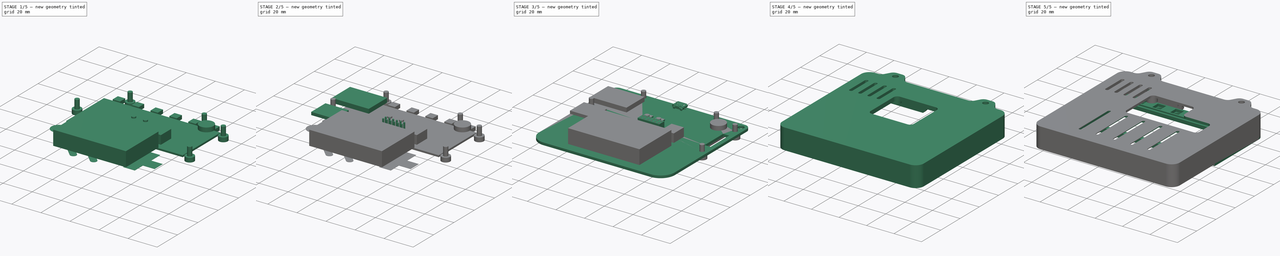
[diagram: build sequence overview — one tinted view per stage of 5, left to right]
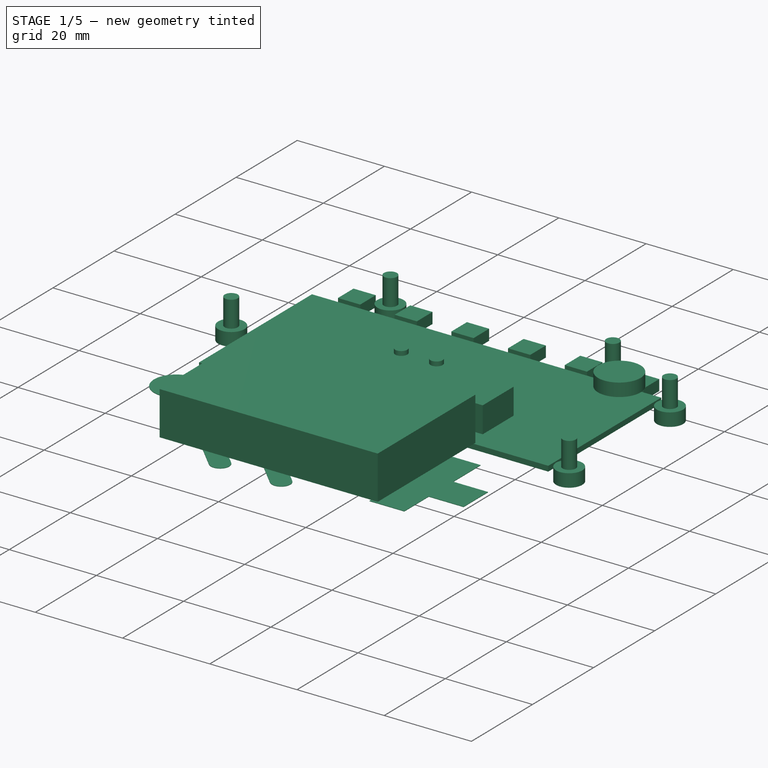
[diagram: stage 1 of 5 — iso view after this stage's code; geometry added in this stage tinted green]
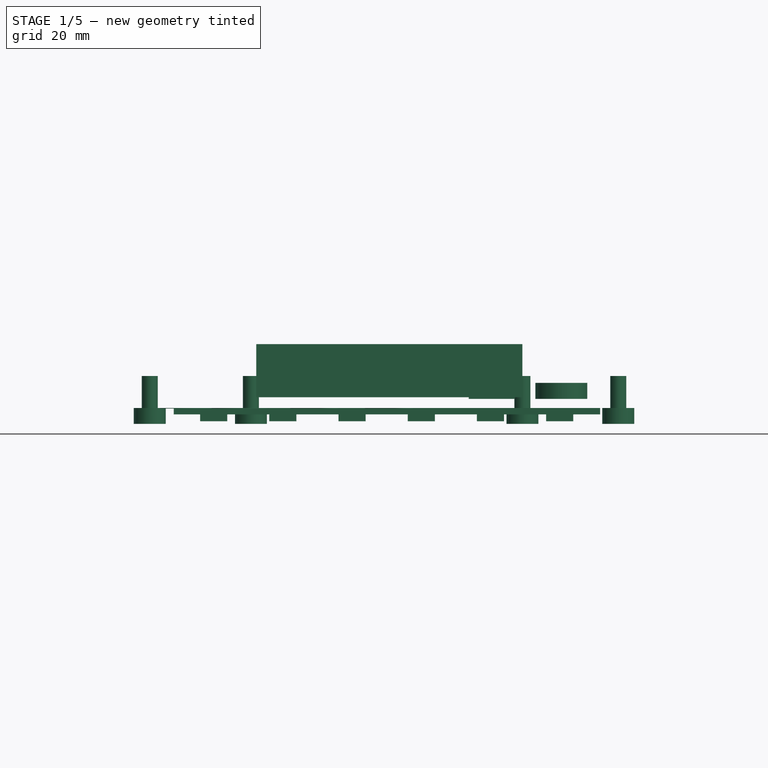
[diagram: stage 1 of 5 — front view after this stage's code; geometry added in this stage tinted green]
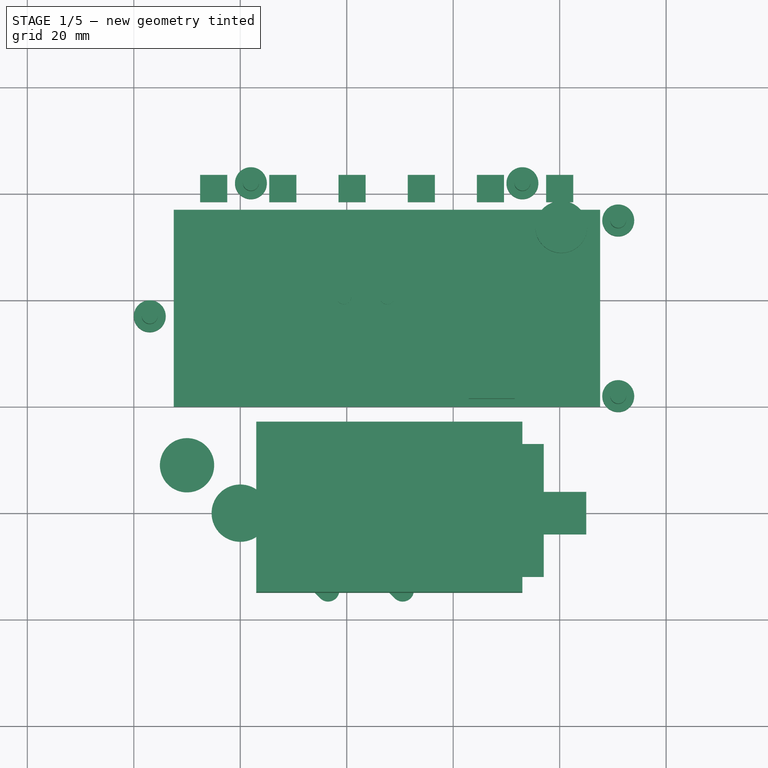
[diagram: stage 1 of 5 — top view after this stage's code; geometry added in this stage tinted green]
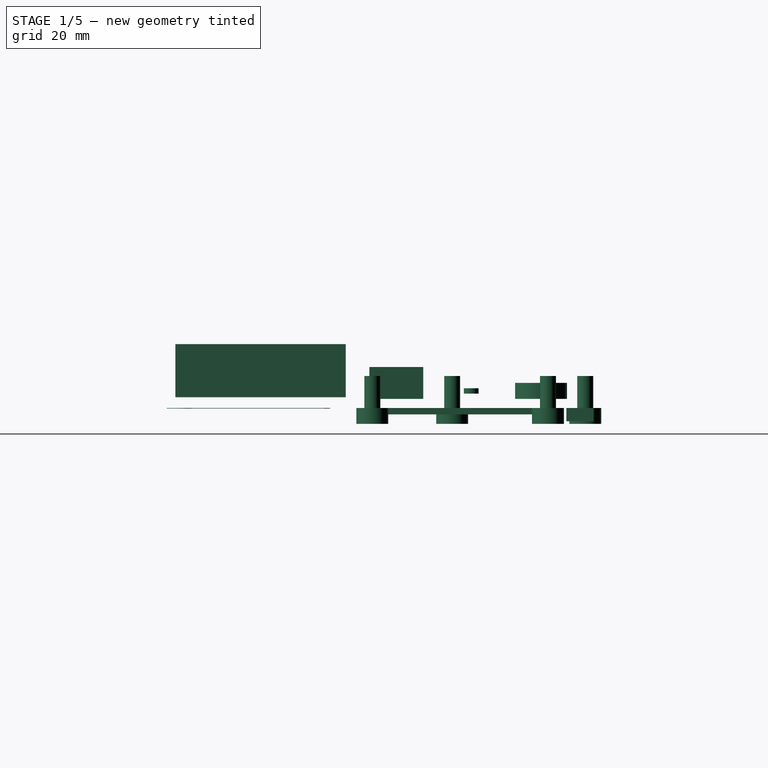
[diagram: stage 1 of 5 — right view after this stage's code; geometry added in this stage tinted green]
FCSTD DOCUMENT  (FreeCAD 0.16R6710 (Git))
Label: basicCase
License: All rights reserved
LicenseURL: http://en.wikipedia.org/wiki/All_rights_reserved
objects: Part::Extrusion×43, Part::Feature×33, Sketcher::SketchObject×26, PartDesign::Pad×7, Part::Cut×6, Part::MultiFuse×5, PartDesign::Pocket×5, Part::FeaturePython×3, PartDesign::Chamfer×3, App::DocumentObjectGroup×3, Part::Compound×2, PartDesign::LinearPattern×2, PartDesign::Fillet×2, Part::Box×1
note: 150 computed .brp shape members not serialized (recipe doc carries the construction recipe); baked Part::Feature solids carry a one-line shape summary decoded from their .brp

FEATURE [Part::Extrusion] Extrude_Polyline1548  label="VibratorOutline_Extrude"
  Base = -> Polyline1548
  Dir = (0,0,3)
  Solid = true
FEATURE [Part::Extrusion] Extrude_Sketch003  label="ledsOutline_Extrude"
  Base = -> Sketch003
  Dir = (0,0,-2.5)
  Solid = true
FEATURE [Part::Extrusion] Extrude_Wire006  label="Start_Extrude"
  Base = -> Wire006
  Dir = (0,0,-0.1)
  Solid = true
FEATURE [Part::Extrusion] Extrude_Wire007  label="Select_Extrude"
  Base = -> Wire007
  Dir = (0,0,-0.1)
  Solid = true
FEATURE [Part::Extrusion] Extrude_Circle019  label="abtn_Extrude"
  Base = -> Circle019
  Dir = (0,0,-0.1)
  Solid = true
FEATURE [Part::Extrusion] Extrude_Circle020  label="bbtn_Extrude"
  Base = -> Circle020
  Dir = (0,0,-0.1)
  Solid = true
FEATURE [Sketcher::SketchObject] Sketch004
  sketch-geometry (13):
    g0: LineSegment StartX=77 StartY=24 StartZ=0 EndX=85 EndY=24 EndZ=0
    g1: LineSegment StartX=85 StartY=24 StartZ=0 EndX=85 EndY=16 EndZ=0
    g2: LineSegment StartX=85 StartY=16 StartZ=0 EndX=77 EndY=16 EndZ=0
    g3: LineSegment StartX=77 StartY=16 StartZ=0 EndX=77 EndY=8 EndZ=0
    g4: LineSegment StartX=77 StartY=8 StartZ=0 EndX=69 EndY=8 EndZ=0
    g5: LineSegment StartX=69 StartY=8 StartZ=0 EndX=69 EndY=16 EndZ=0
    g6: LineSegment StartX=69 StartY=16 StartZ=0 EndX=61 EndY=16 EndZ=0
    g7: LineSegment StartX=61 StartY=16 StartZ=0 EndX=61 EndY=24 EndZ=0
    g8: LineSegment StartX=61 StartY=24 StartZ=0 EndX=69 EndY=24 EndZ=0
    g9: LineSegment StartX=69 StartY=24 StartZ=0 EndX=69 EndY=33 EndZ=0
    g10: LineSegment StartX=69 StartY=33 StartZ=0 EndX=77 EndY=33 EndZ=0
    g11: LineSegment StartX=77 StartY=33 StartZ=0 EndX=77 EndY=24.1 EndZ=0
    g12: LineSegment StartX=77 StartY=24 StartZ=0 EndX=77 EndY=24.1 EndZ=0
  constraints (4):
    c: DistanceX(g0) = 77
    c: DistanceY(g0) = 24
    c: Coincident(g0,g12)
    c: Coincident(g11,g12)
FEATURE [Part::Extrusion] Extrude_Sketch004  label="dpad001"
  Base = -> Sketch004
  Dir = (0,0,-0.1)
  Solid = true
FEATURE [Part::Compound] Compound  label="CapButtons"
  Links = -> [Extrude_Sketch004,Extrude_Wire006,Extrude_Circle019,Extrude_Wire007,Extrude_Circle020,Fusion001001]
FEATURE [Part::Extrusion] Extrude_Wire002  label="batConOutline_Extrude"
  Base = -> Wire002
  Dir = (0,0,6)
  Solid = true
FEATURE [Part::Extrusion] Extrude_Wire005  label="lcd_Extrude"
  Base = -> Wire005
  Dir = (0,0,-1.2)
  Solid = true
FEATURE [Part::Extrusion] Extrude_Sketch  label="Buttons_Extrude"
  Base = -> Sketch
  Dir = (0,0,1)
  Solid = true
FEATURE [Sketcher::SketchObject] Sketch005
  ExternalGeometry = -> [Extrude_Sketch]
  Placement = pos=(0,0,2.7) rot=(0,0,1;0rad)
  Support = -> Extrude_Sketch [Face6]
  sketch-geometry (7):
    g0: Circle CenterX=39.4787 CenterY=60.5688 CenterZ=0 NormalX=0 NormalY=0 NormalZ=1 Radius=1.38631
    g1: Circle CenterX=47.5742 CenterY=60.5688 CenterZ=0 NormalX=0 NormalY=0 NormalZ=1 Radius=1.38631
    g2: LineSegment [constr] StartX=42.0765 StartY=63.1395 StartZ=0 EndX=39.4787 EndY=60.5688 EndZ=0
    g3: LineSegment [constr] StartX=39.4787 StartY=60.5688 StartZ=0 EndX=36.8809 EndY=57.9981 EndZ=0
    g4: LineSegment [constr] StartX=39.4787 StartY=60.5688 StartZ=0 EndX=36.8809 EndY=63.1395 EndZ=0
    g5: LineSegment [constr] StartX=44.9764 StartY=63.1395 StartZ=0 EndX=47.5742 EndY=60.5688 EndZ=0
    g6: LineSegment [constr] StartX=47.5742 StartY=60.5688 StartZ=0 EndX=50.172 EndY=63.1395 EndZ=0
  constraints (15):
    c: Coincident(g2,g-4)
    c: Coincident(g3,g0)
    c: Coincident(g3,g-5)
    c: Coincident(g4,g0)
    c: Coincident(g4,g-4)
    c: Coincident(g5,g-3)
    c: Coincident(g5,g1)
    c: Coincident(g6,g1)
    c: Coincident(g6,g-3)
    c: Equal(g6,g5)
    c: Equal(g5,g2)
    c: Equal(g2,g4)
    c: Equal(g4,g3)
    c: Coincident(g0,g2)
    c: Equal(g0,g1)
FEATURE [Part::Extrusion] Extrude_Sketch005  label="Sketch005_Extrude"
  Base = -> Sketch005
  Dir = (0,0,1)
  Solid = true
FEATURE [Part::Box] Box  label="Battery"
  Height = 10
  Length = 50
  Placement = pos=(23,5,2) rot=(0,0,1;0rad)
  Width = 32
FEATURE [Sketcher::SketchObject] Sketch010
  Placement = pos=(0,0,0) rot=(1,0,0;3.14159rad)
  sketch-geometry (5):
    g0: Circle CenterX=3 CenterY=-57 CenterZ=0 NormalX=0 NormalY=0 NormalZ=1 Radius=3
    g1: Circle CenterX=91 CenterY=-42 CenterZ=0 NormalX=0 NormalY=0 NormalZ=1 Radius=3
    g2: Circle CenterX=91 CenterY=-75 CenterZ=0 NormalX=0 NormalY=0 NormalZ=1 Radius=3
    g3: Circle CenterX=73 CenterY=-82 CenterZ=0 NormalX=0 NormalY=0 NormalZ=1 Radius=3
    g4: Circle CenterX=22 CenterY=-82 CenterZ=0 NormalX=0 NormalY=0 NormalZ=1 Radius=3
  constraints (2):
    c: Radius(g4) = 3
    c: Equal(g4, g0-g3) x4
FEATURE [Part::Extrusion] Extrude_Sketch010  label="Sketch010_Extrude"
  Base = -> Sketch010
  Dir = (0,0,-3)
  Solid = true
FEATURE [Sketcher::SketchObject] Sketch011
  ExternalGeometry = -> [Extrude_Sketch010]
  Support = -> Extrude_Sketch010 [Face2]
  sketch-geometry (5):
    g0: Circle CenterX=3 CenterY=57 CenterZ=0 NormalX=0 NormalY=0 NormalZ=1 Radius=1.5
    g1: Circle CenterX=22 CenterY=82 CenterZ=0 NormalX=0 NormalY=0 NormalZ=1 Radius=1.5
    g2: Circle CenterX=73 CenterY=82 CenterZ=0 NormalX=0 NormalY=0 NormalZ=1 Radius=1.5
    g3: Circle CenterX=91 CenterY=75 CenterZ=0 NormalX=0 NormalY=0 NormalZ=1 Radius=1.5
    g4: Circle CenterX=91 CenterY=42 CenterZ=0 NormalX=0 NormalY=0 NormalZ=1 Radius=1.5
  constraints (7):
    c: Coincident(g0,g-4)
    c: Coincident(g1,g-3)
    c: Coincident(g2,g-5)
    c: Coincident(g3,g-6)
    c: Coincident(g4,g-7)
    c: Radius(g0) = 1.5
    c: Equal(g0, g1-g4) x4
FEATURE [Part::Extrusion] Extrude_Sketch011  label="Sketch011_Extrude"
  Base = -> Sketch011
  Dir = (0,0,6)
  Solid = true
FEATURE [Part::MultiFuse] Fusion001003  label="M3-6mmScrews"
  Shapes = -> [Extrude_Sketch010,Extrude_Sketch011]
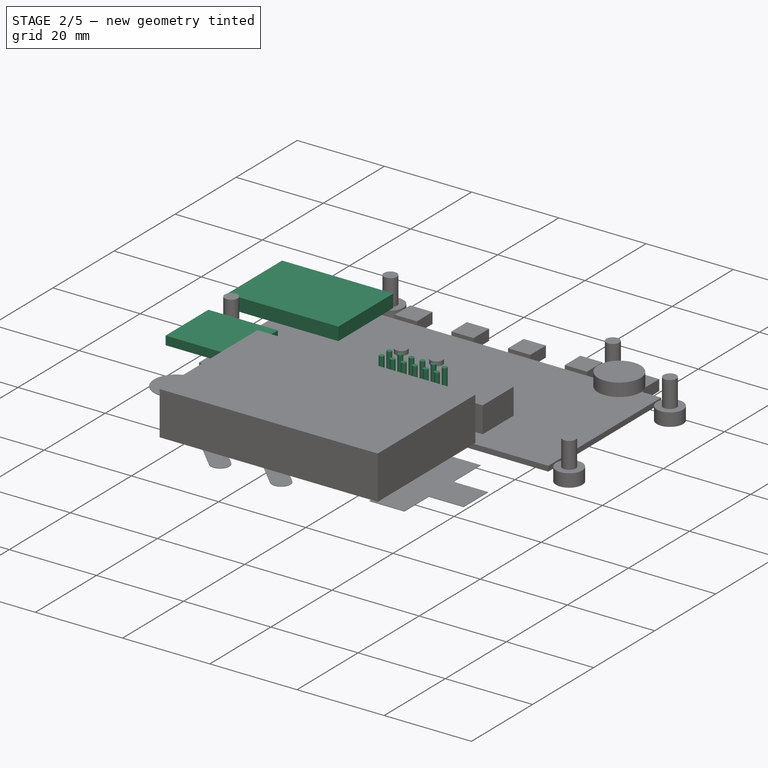
[diagram: stage 2 of 5 — iso view after this stage's code; geometry added in this stage tinted green]
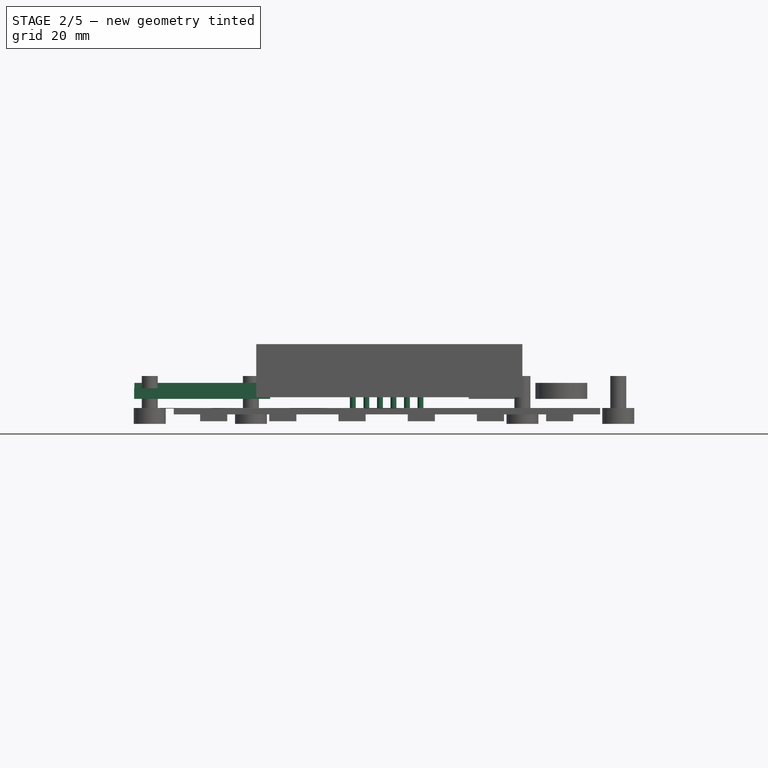
[diagram: stage 2 of 5 — front view after this stage's code; geometry added in this stage tinted green]
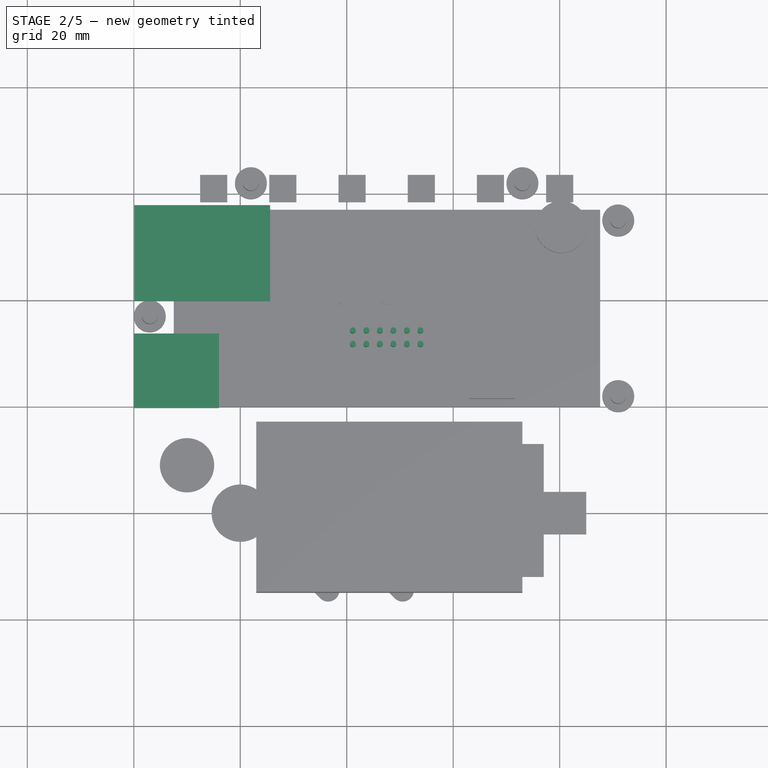
[diagram: stage 2 of 5 — top view after this stage's code; geometry added in this stage tinted green]
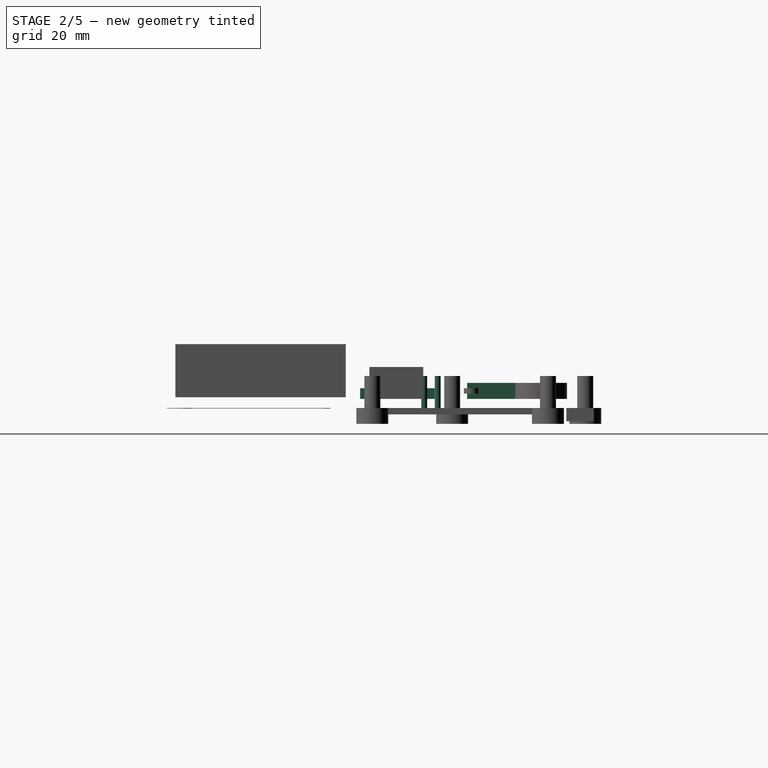
[diagram: stage 2 of 5 — right view after this stage's code; geometry added in this stage tinted green]
FEATURE [Part::Extrusion] Extrude_Circle007  label="Circle007_Extrude"
  Base = -> Circle007
  Dir = (0,0,6)
  Solid = true
FEATURE [Part::Extrusion] Extrude_Circle008  label="Circle008_Extrude"
  Base = -> Circle008
  Dir = (0,0,6)
  Solid = true
FEATURE [Part::Extrusion] Extrude_Circle009  label="Circle009_Extrude"
  Base = -> Circle009
  Dir = (0,0,6)
  Solid = true
FEATURE [Part::Extrusion] Extrude_Circle010  label="Circle010_Extrude"
  Base = -> Circle010
  Dir = (0,0,6)
  Solid = true
FEATURE [Part::Extrusion] Extrude_Circle011  label="Circle011_Extrude"
  Base = -> Circle011
  Dir = (0,0,6)
  Solid = true
FEATURE [Part::Extrusion] Extrude_Circle012  label="Circle012_Extrude"
  Base = -> Circle012
  Dir = (0,0,6)
  Solid = true
FEATURE [Part::Extrusion] Extrude_Circle013  label="Circle013_Extrude"
  Base = -> Circle013
  Dir = (0,0,6)
  Solid = true
FEATURE [Part::Extrusion] Extrude_Circle014  label="Circle014_Extrude"
  Base = -> Circle014
  Dir = (0,0,6)
  Solid = true
FEATURE [Part::Extrusion] Extrude_Circle015  label="Circle015_Extrude"
  Base = -> Circle015
  Dir = (0,0,6)
  Solid = true
FEATURE [Part::Extrusion] Extrude_Circle016  label="Circle016_Extrude"
  Base = -> Circle016
  Dir = (0,0,6)
  Solid = true
FEATURE [Part::Extrusion] Extrude_Circle017  label="Circle017_Extrude"
  Base = -> Circle017
  Dir = (0,0,6)
  Solid = true
FEATURE [Part::Extrusion] Extrude_Circle018  label="Circle018_Extrude"
  Base = -> Circle018
  Dir = (0,0,6)
  Solid = true
FEATURE [Part::MultiFuse] Fusion001  label="AuxConn"
  Shapes = -> [Extrude_Circle007,Extrude_Circle015,Extrude_Circle010,Extrude_Circle012,Extrude_Circle013,Extrude_Circle017,Extrude_Circle018,Extrude_Circle008,Extrude_Circle011,Extrude_Circle009,Extrude_Circle016,Extrude_Circle014]
FEATURE [Part::Extrusion] Extrude_Sketch002  label="sdouline_Extrude"
  Base = -> Sketch002
  Dir = (0,0,2)
  Solid = true
FEATURE [Part::Extrusion] Extrude_Wire003  label="ESP32Outline_Extrude"
  Base = -> Wire003
  Dir = (0,0,3)
  Solid = true
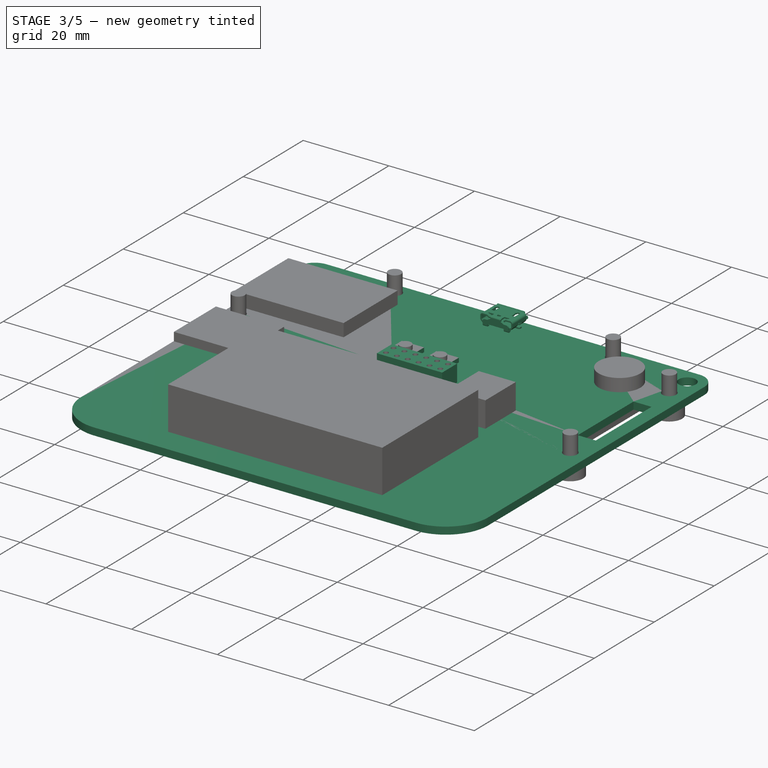
[diagram: stage 3 of 5 — iso view after this stage's code; geometry added in this stage tinted green]
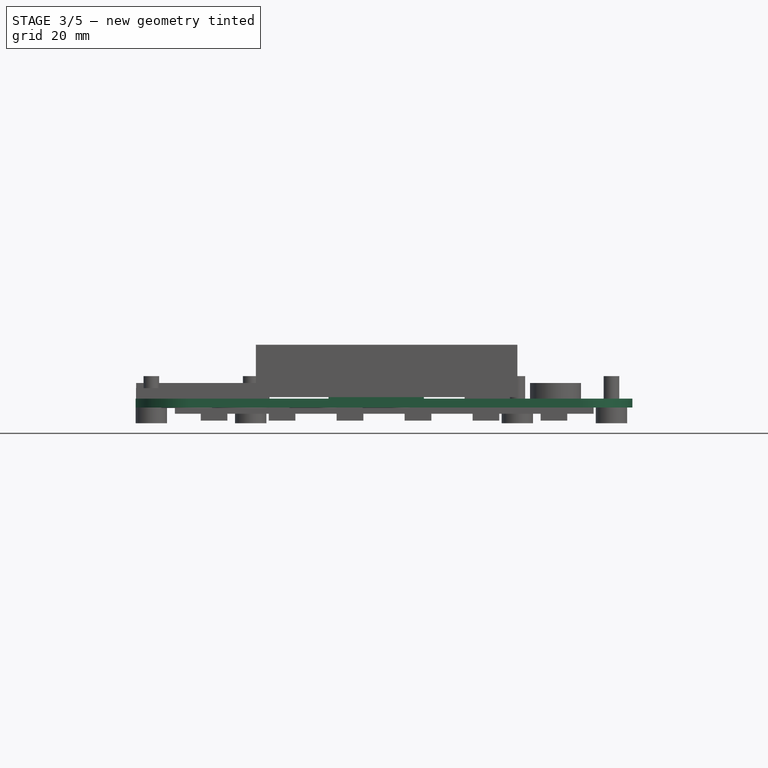
[diagram: stage 3 of 5 — front view after this stage's code; geometry added in this stage tinted green]
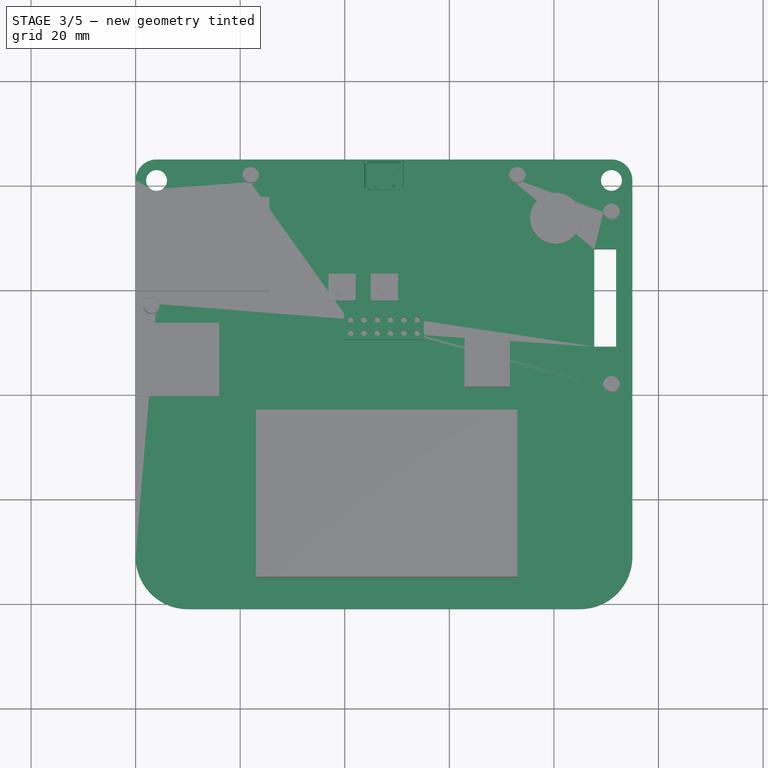
[diagram: stage 3 of 5 — top view after this stage's code; geometry added in this stage tinted green]
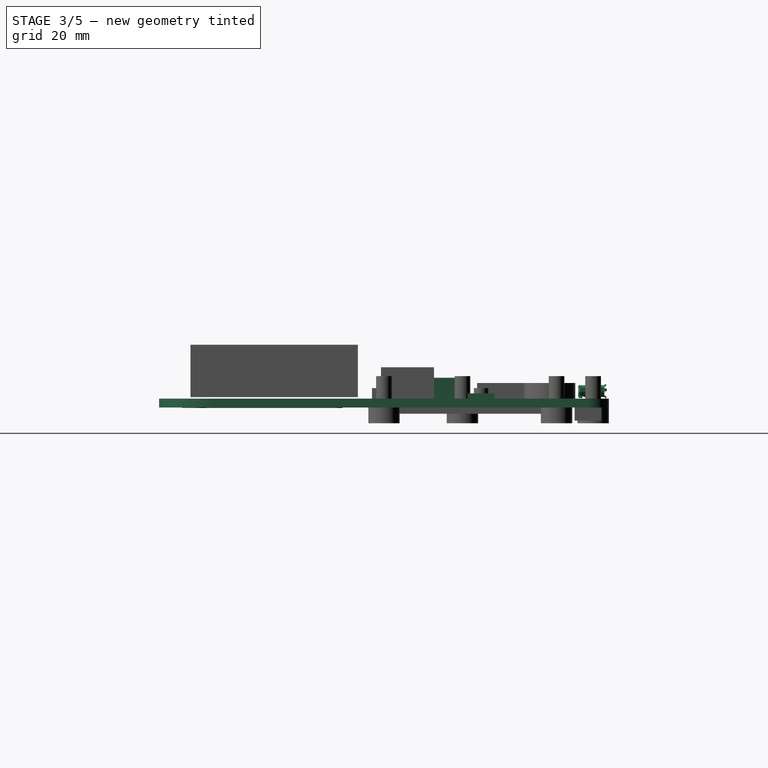
[diagram: stage 3 of 5 — right view after this stage's code; geometry added in this stage tinted green]
FEATURE [Part::Feature] Circle
  shape: bbox 4 x 4 x 2e-07 mm, 0 faces, 0 solids (baked)
FEATURE [Part::Feature] Circle001
  shape: bbox 4 x 4 x 2e-07 mm, 0 faces, 0 solids (baked)
FEATURE [Part::Feature] Circle002 .. Circle006  x5 (patterned run collapsed; names and placements below)
  shape: bbox 3.2 x 3.2 x 2e-07 mm, 0 faces, 0 solids (baked)
FEATURE [Part::Feature] Circle007 .. Circle018  x12 (patterned run collapsed; names and placements below)
  shape: bbox 1.1 x 1.1 x 2e-07 mm, 0 faces, 0 solids (baked)
FEATURE [Part::Feature] Face
  shape: bbox 95 x 86 x 2e-07 mm, 1 faces, 0 solids (baked)
FEATURE [Part::Extrusion] Extrude_Face  label="pcbOutline"
  Base = -> Face
  Dir = (0,0,1.7)
  Solid = true
FEATURE [Part::Extrusion] Extrude_Circle  label="Circle_Extrude"
  Base = -> Circle
  Dir = (0,0,1.7)
  Solid = true
FEATURE [Part::Extrusion] Extrude_Circle001  label="Circle001_Extrude"
  Base = -> Circle001
  Dir = (0,0,1.7)
  Solid = true
FEATURE [Part::Extrusion] Extrude_Circle002  label="Circle002_Extrude"
  Base = -> Circle002
  Dir = (0,0,1.7)
  Solid = true
FEATURE [Part::Extrusion] Extrude_Circle003  label="Circle003_Extrude"
  Base = -> Circle003
  Dir = (0,0,1.7)
  Solid = true
FEATURE [Part::Extrusion] Extrude_Circle004  label="Circle004_Extrude"
  Base = -> Circle004
  Dir = (0,0,1.7)
  Solid = true
FEATURE [Part::Extrusion] Extrude_Circle005  label="Circle005_Extrude"
  Base = -> Circle005
  Dir = (0,0,1.7)
  Solid = true
FEATURE [Part::Extrusion] Extrude_Circle006  label="Circle006_Extrude"
  Base = -> Circle006
  Dir = (0,0,1.7)
  Solid = true
FEATURE [Part::MultiFuse] Fusion  label="Holes"
  Shapes = -> [Extrude_Circle,Extrude_Circle002,Extrude_Circle001,Extrude_Circle005,Extrude_Circle003,Extrude_Circle004,Extrude_Circle006]
FEATURE [Part::Feature] Wire
  shape: bbox 4.2 x 18.6 x 2e-07 mm, 0 faces, 0 solids (baked)
FEATURE [Part::Extrusion] Extrude_Wire  label="lcdWires"
  Base = -> Wire
  Dir = (0,0,1.7)
  Solid = true
FEATURE [Part::Feature] Wire001  label="BatteryArea"
  Placement = pos=(0,0,1.7) rot=(0,0,1;0rad)
  shape: bbox 58.5 x 39.7 x 2e-07 mm, 0 faces, 0 solids (baked)
FEATURE [Part::Feature] Wire002  label="batConOutline"
  Placement = pos=(0,0,1.7) rot=(0,0,1;0rad)
  shape: bbox 8.636 x 10.13 x 2e-07 mm, 0 faces, 0 solids (baked)
FEATURE [Part::Feature] Wire003  label="ESP32Outline"
  Placement = pos=(0,0,1.7) rot=(0,0,1;0rad)
  shape: bbox 25.5 x 18 x 2e-07 mm, 0 faces, 0 solids (baked)
FEATURE [Part::Feature] Polyline1548  label="VibratorOutline"
  Placement = pos=(0,0,1.7) rot=(0,0,1;0rad)
  shape: bbox 9.751 x 9.751 x 2e-07 mm, 0 faces, 0 solids (baked)
FEATURE [Sketcher::SketchObject] Sketch  label="Buttons"
  Placement = pos=(0,0,1.7) rot=(0,0,1;0rad)
  sketch-geometry (9):
    g0: LineSegment StartX=42.0765 StartY=63.1395 StartZ=0 EndX=36.8809 EndY=63.1395 EndZ=0
    g1: LineSegment StartX=36.8809 StartY=63.1395 StartZ=0 EndX=36.8809 EndY=57.9981 EndZ=0
    g2: LineSegment StartX=36.8809 StartY=57.9981 StartZ=0 EndX=42.0765 EndY=57.9981 EndZ=0
    g3: LineSegment StartX=42.0765 StartY=57.9981 StartZ=0 EndX=42.0765 EndY=63.1395 EndZ=0
    g4: LineSegment StartX=44.9764 StartY=63.1395 StartZ=0 EndX=50.172 EndY=63.1395 EndZ=0
    g5: LineSegment StartX=50.172 StartY=63.1395 StartZ=0 EndX=50.172 EndY=57.9981 EndZ=0
    g6: LineSegment StartX=50.172 StartY=57.9981 StartZ=0 EndX=44.9764 EndY=57.9981 EndZ=0
    g7: LineSegment StartX=44.9764 StartY=57.9981 StartZ=0 EndX=44.9764 EndY=63.1395 EndZ=0
    g8: LineSegment [constr] StartX=42.0765 StartY=63.1395 StartZ=0 EndX=44.9764 EndY=63.1395 EndZ=0
  constraints (21):
    c: Coincident(g0,g1)
    c: Coincident(g1,g2)
    c: Coincident(g2,g3)
    c: Coincident(g3,g0)
    c: Horizontal(g0)
    c: Horizontal(g2)
    c: Vertical(g1)
    c: Vertical(g3)
    c: Coincident(g4,g5)
    c: Coincident(g5,g6)
    c: Coincident(g6,g7)
    c: Coincident(g7,g4)
    c: Horizontal(g4)
    c: Horizontal(g6)
    c: Vertical(g5)
    c: Vertical(g7)
    c: Equal(g0,g4)
    c: Equal(g3,g7)
    c: Coincident(g4,g8)
    c: Coincident(g0,g8)
    c: Horizontal(g8)
FEATURE [Sketcher::SketchObject] Sketch001  label="auxConnAoutline"
  Placement = pos=(0,0,1.7) rot=(1,0,0;3.14159rad)
  sketch-geometry (7):
    g0: LineSegment StartX=55.125 StartY=-50.5 StartZ=0 EndX=39.875 EndY=-50.5 EndZ=0
    g1: LineSegment StartX=39.875 StartY=-50.5 StartZ=0 EndX=39.875 EndY=-55.5 EndZ=0
    g2: LineSegment StartX=39.875 StartY=-55.5 StartZ=0 EndX=55.125 EndY=-55.5 EndZ=0
    g3: LineSegment StartX=55.125 StartY=-55.5 StartZ=0 EndX=55.125 EndY=-50.5 EndZ=0
    g4: LineSegment [constr] StartX=41.15 StartY=-51.73 StartZ=0 EndX=39.875 EndY=-50.5 EndZ=0
    g5: LineSegment [constr] StartX=41.15 StartY=-54.27 StartZ=0 EndX=39.875 EndY=-55.5 EndZ=0
    g6: LineSegment [constr] StartX=53.85 StartY=-51.73 StartZ=0 EndX=55.125 EndY=-50.5 EndZ=0
  constraints (15):
    c: Coincident(g0,g1)
    c: Coincident(g1,g2)
    c: Coincident(g2,g3)
    c: Coincident(g3,g0)
    c: Horizontal(g0)
    c: Horizontal(g2)
    c: Vertical(g1)
    c: Vertical(g3)
    c: Coincident(g4,g0)
    c: Coincident(g5,g1)
    c: Coincident(g6,g0)
    c: Equal(g6,g4)
    c: Equal(g4,g5)
    c: Distance(g0) = 15.25
    c: Distance(g3) = 5
FEATURE [Sketcher::SketchObject] Sketch002  label="sdouline"
  Placement = pos=(0,0,1.7) rot=(0,0,1;0rad)
  sketch-geometry (4):
    g0: LineSegment StartX=16.0011 StartY=53.7008 StartZ=0 EndX=0.063418 EndY=53.7008 EndZ=0
    g1: LineSegment StartX=0.063418 StartY=53.7008 StartZ=0 EndX=0.063418 EndY=39.6988 EndZ=0
    g2: LineSegment StartX=0.063418 StartY=39.6988 StartZ=0 EndX=16.0011 EndY=39.6988 EndZ=0
    g3: LineSegment StartX=16.0011 StartY=39.6988 StartZ=0 EndX=16.0011 EndY=53.7008 EndZ=0
  constraints (8):
    c: Coincident(g0,g1)
    c: Coincident(g1,g2)
    c: Coincident(g2,g3)
    c: Coincident(g3,g0)
    c: Horizontal(g0)
    c: Horizontal(g2)
    c: Vertical(g1)
    c: Vertical(g3)
FEATURE [Part::Feature] Wire005  label="lcd"
  shape: bbox 80.1 x 37 x 2e-07 mm, 0 faces, 0 solids (baked)
FEATURE [Part::Feature] Wire006  label="Start"
  shape: bbox 9.243 x 9.243 x 2e-07 mm, 0 faces, 0 solids (baked)
FEATURE [Part::Feature] Wire007  label="Select"
  shape: bbox 9.243 x 9.243 x 2e-07 mm, 0 faces, 0 solids (baked)
FEATURE [Part::Feature] Circle019  label="abtn"
  shape: bbox 10.2 x 10.2 x 2e-07 mm, 0 faces, 0 solids (baked)
FEATURE [Part::Feature] Circle020  label="bbtn"
  shape: bbox 10.77 x 10.77 x 2e-07 mm, 0 faces, 0 solids (baked)
FEATURE [Sketcher::SketchObject] Sketch003  label="ledsOutline"
  sketch-geometry (29):
    g0: LineSegment StartX=12.45 StartY=83.55 StartZ=0 EndX=17.55 EndY=83.55 EndZ=0
    g1: LineSegment StartX=17.55 StartY=83.55 StartZ=0 EndX=17.55 EndY=78.45 EndZ=0
    g2: LineSegment StartX=17.55 StartY=78.45 StartZ=0 EndX=12.45 EndY=78.45 EndZ=0
    g3: LineSegment StartX=12.45 StartY=78.45 StartZ=0 EndX=12.45 EndY=83.55 EndZ=0
    g4: LineSegment StartX=25.45 StartY=83.55 StartZ=0 EndX=30.55 EndY=83.55 EndZ=0
    g5: LineSegment StartX=30.55 StartY=83.55 StartZ=0 EndX=30.55 EndY=78.45 EndZ=0
    g6: LineSegment StartX=30.55 StartY=78.45 StartZ=0 EndX=25.45 EndY=78.45 EndZ=0
    g7: LineSegment StartX=25.45 StartY=78.45 StartZ=0 EndX=25.45 EndY=83.55 EndZ=0
    g8: LineSegment StartX=38.45 StartY=83.55 StartZ=0 EndX=43.55 EndY=83.55 EndZ=0
    g9: LineSegment StartX=43.55 StartY=83.55 StartZ=0 EndX=43.55 EndY=78.45 EndZ=0
    g10: LineSegment StartX=43.55 StartY=78.45 StartZ=0 EndX=38.45 EndY=78.45 EndZ=0
    g11: LineSegment StartX=38.45 StartY=78.45 StartZ=0 EndX=38.45 EndY=83.55 EndZ=0
    g12: LineSegment StartX=51.45 StartY=83.55 StartZ=0 EndX=56.55 EndY=83.55 EndZ=0
    g13: LineSegment StartX=56.55 StartY=83.55 StartZ=0 EndX=56.55 EndY=78.45 EndZ=0
    g14: LineSegment StartX=56.55 StartY=78.45 StartZ=0 EndX=51.45 EndY=78.45 EndZ=0
    g15: LineSegment StartX=51.45 StartY=78.45 StartZ=0 EndX=51.45 EndY=83.55 EndZ=0
    g16: LineSegment StartX=64.45 StartY=83.55 StartZ=0 EndX=69.55 EndY=83.55 EndZ=0
    g17: LineSegment StartX=69.55 StartY=83.55 StartZ=0 EndX=69.55 EndY=78.45 EndZ=0
    g18: LineSegment StartX=69.55 StartY=78.45 StartZ=0 EndX=64.45 EndY=78.45 EndZ=0
    g19: LineSegment StartX=64.45 StartY=78.45 StartZ=0 EndX=64.45 EndY=83.55 EndZ=0
    g20: LineSegment StartX=77.45 StartY=83.55 StartZ=0 EndX=82.55 EndY=83.55 EndZ=0
    g21: LineSegment StartX=82.55 StartY=83.55 StartZ=0 EndX=82.55 EndY=78.45 EndZ=0
    g22: LineSegment StartX=82.55 StartY=78.45 StartZ=0 EndX=77.45 EndY=78.45 EndZ=0
    g23: LineSegment StartX=77.45 StartY=78.45 StartZ=0 EndX=77.45 EndY=83.55 EndZ=0
    g24: LineSegment [constr] StartX=77.45 StartY=83.55 StartZ=0 EndX=69.55 EndY=83.55 EndZ=0
    g25: LineSegment [constr] StartX=64.45 StartY=83.55 StartZ=0 EndX=56.55 EndY=83.55 EndZ=0
    g26: LineSegment [constr] StartX=51.45 StartY=83.55 StartZ=0 EndX=43.55 EndY=83.55 EndZ=0
    g27: LineSegment [constr] StartX=38.45 StartY=83.55 StartZ=0 EndX=30.55 EndY=83.55 EndZ=0
    g28: LineSegment [constr] StartX=25.45 StartY=83.55 StartZ=0 EndX=17.55 EndY=83.55 EndZ=0
  constraints (82):
    c: Coincident(g0,g1)
    c: Coincident(g1,g2)
    c: Coincident(g2,g3)
    c: Coincident(g3,g0)
    c: Horizontal(g0)
    c: Horizontal(g2)
    c: Vertical(g1)
    c: Vertical(g3)
    c: Coincident(g4,g5)
    c: Coincident(g5,g6)
    c: Coincident(g6,g7)
    c: Coincident(g7,g4)
    c: Horizontal(g4)
    c: Horizontal(g6)
    c: Vertical(g5)
    c: Vertical(g7)
    c: Coincident(g8,g9)
    c: Coincident(g9,g10)
    c: Coincident(g10,g11)
    c: Coincident(g11,g8)
    c: Horizontal(g8)
    c: Horizontal(g10)
    c: Vertical(g9)
    c: Vertical(g11)
    c: Coincident(g12,g13)
    c: Coincident(g13,g14)
    c: Coincident(g14,g15)
    c: Coincident(g15,g12)
    c: Horizontal(g12)
    c: Horizontal(g14)
    c: Vertical(g13)
    c: Vertical(g15)
    c: Coincident(g16,g17)
    c: Coincident(g17,g18)
    c: Coincident(g18,g19)
    c: Coincident(g19,g16)
    c: Horizontal(g16)
    c: Horizontal(g18)
    c: Vertical(g17)
    c: Vertical(g19)
    c: Coincident(g20,g21)
    c: Coincident(g21,g22)
    c: Coincident(g22,g23)
    c: Coincident(g23,g20)
    c: Horizontal(g20)
    c: Horizontal(g22)
    c: Vertical(g21)
    c: Vertical(g23)
    c: Coincident(g24,g20)
    c: Coincident(g24,g16)
    c: Coincident(g25,g16)
    c: Coincident(g25,g12)
    c: Coincident(g26,g12)
    c: Coincident(g26,g8)
    c: Horizontal(g26)
    c: Coincident(g27,g8)
    c: Coincident(g27,g4)
    c: Horizontal(g27)
    c: Coincident(g28,g4)
    c: Coincident(g28,g0)
    c: Horizontal(g28)
    c: Horizontal(g24)
    c: Horizontal(g25)
    c: Equal(g20,g16)
    c: Equal(g16,g12)
    c: Equal(g12,g8)
    c: Equal(g8,g4)
    c: Equal(g4,g0)
    c: Equal(g21,g17)
    c: Equal(g17,g13)
    c: Equal(g13,g9)
    c: Equal(g9,g5)
    c: Equal(g5,g1)
    c: Equal(g24,g25)
    c: Equal(g25,g26)
    c: Equal(g26,g27)
    c: Equal(g27,g28)
    c: DistanceX(g0) = 12.45
    c: DistanceY(g0) = 83.55
    c: Equal(g3,g0)
    c: Distance(g0) = 5.1
    c: Distance(g24) = 7.9
FEATURE [Part::Feature] Fusion001001  label="btnNames"
  shape: bbox 46.55 x 23.5 x 2e-07 mm, 0 faces, 0 solids (baked)
FEATURE [Part::MultiFuse] Fusion001002
  Shapes = -> [Fusion,Fusion001,Extrude_Wire]
FEATURE [Part::Cut] Cut
  Base = -> Extrude_Face
  Tool = -> Fusion001002
FEATURE [Part::Extrusion] Extrude_Sketch001  label="auxConnAoutline_Extrude"
  Base = -> Sketch001
  Dir = (0,0,4)
  Solid = true
FEATURE [Part::FeaturePython] Clone  label="Clone of AuxConn"  # Draft clone (typed FeaturePython)
  Objects = -> [Fusion001]
  Scale = (1,1,1)
FEATURE [Part::Cut] Cut001  label="AuxConnector"
  Base = -> Extrude_Sketch001
  Tool = -> Clone
FEATURE [Part::Feature] Part__Feature002  label="molex_0473460003"
  Placement = pos=(47.5,82,1.8) rot=(0,0.707107,0.707107;3.14159rad)
  shape: bbox 7.981 x 5.431 x 2.764 mm, 352 faces (baked)
FEATURE [Part::Compound] Compound001  label="badge2017"
  Links = -> [Fusion001003,Wire001,Cut,Cut001,Extrude_Sketch002,Extrude_Wire003,Extrude_Polyline1548,Extrude_Sketch003,Compound,Extrude_Wire002,Extrude_Wire005,Extrude_Sketch,Extrude_Sketch005,Box,Part__Feature002]
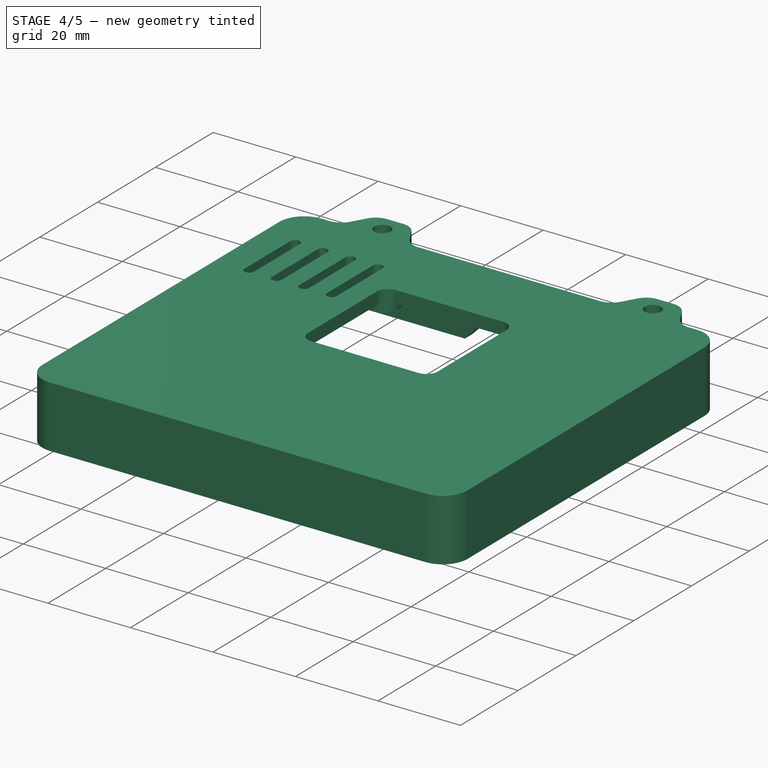
[diagram: stage 4 of 5 — iso view after this stage's code; geometry added in this stage tinted green]
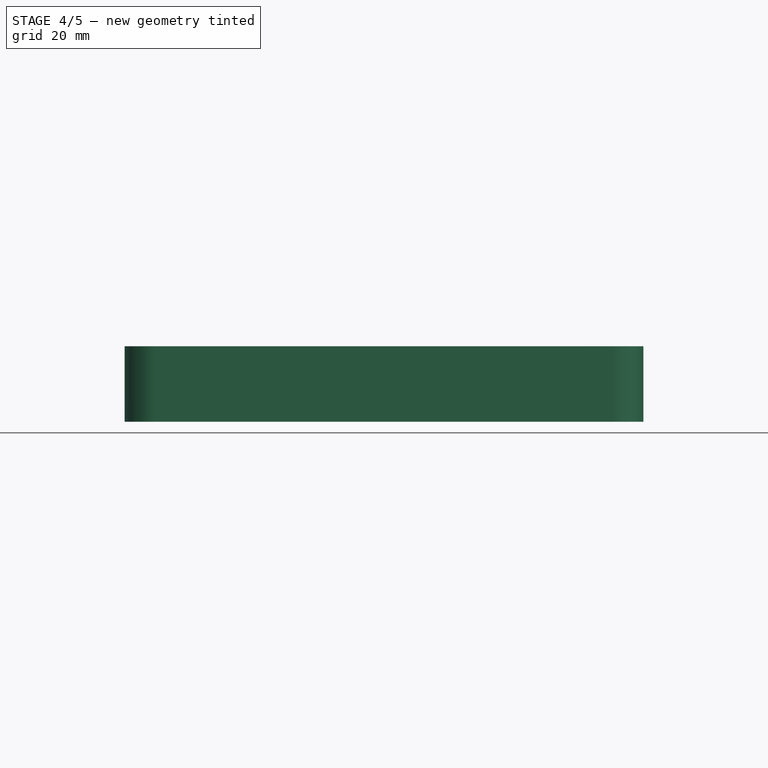
[diagram: stage 4 of 5 — front view after this stage's code; geometry added in this stage tinted green]
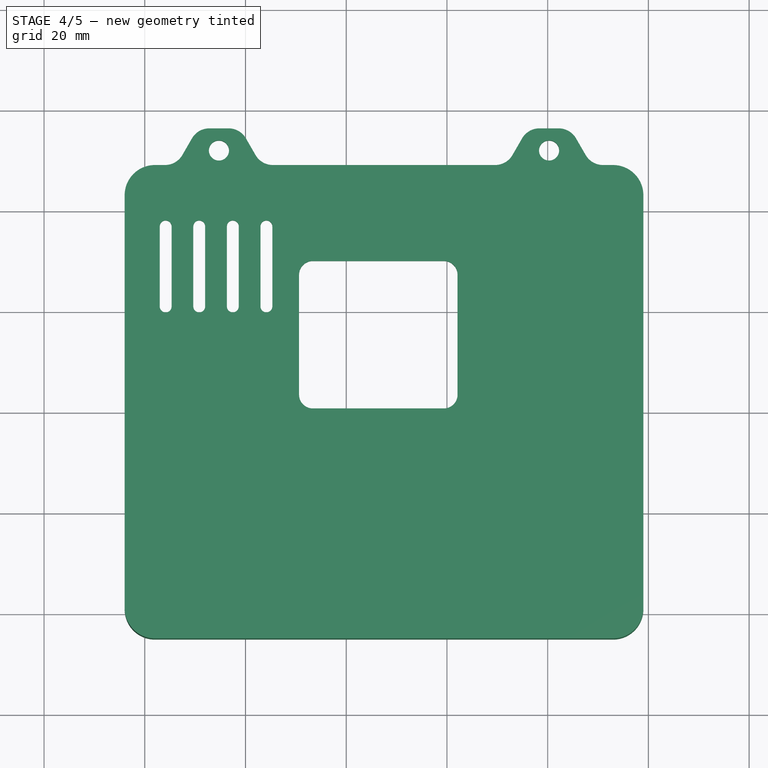
[diagram: stage 4 of 5 — top view after this stage's code; geometry added in this stage tinted green]
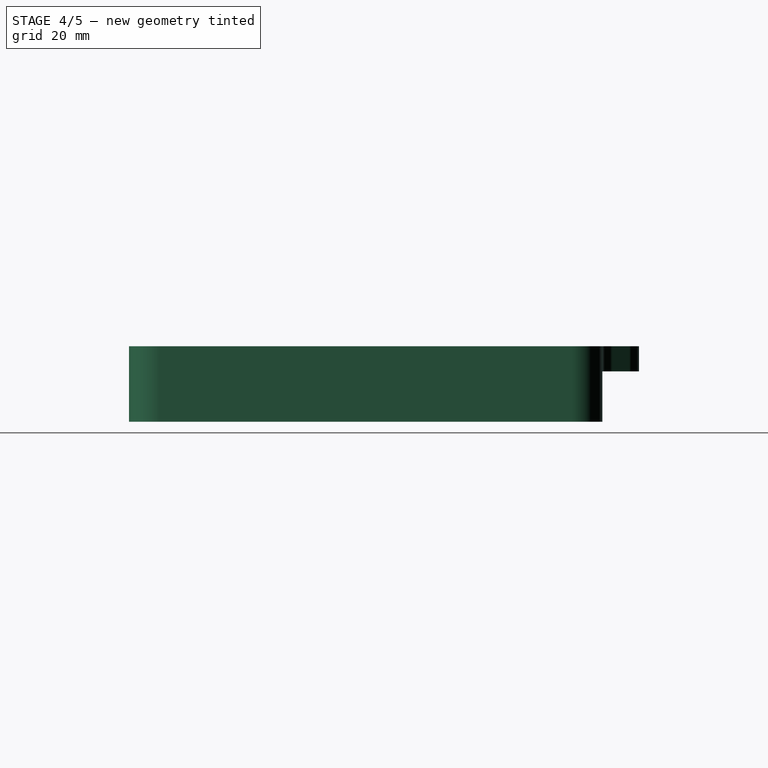
[diagram: stage 4 of 5 — right view after this stage's code; geometry added in this stage tinted green]
FEATURE [Sketcher::SketchObject] Sketch012
  ExternalGeometry = -> [Compound001]
  Placement = pos=(0,0,1.7) rot=(0,0,1;0rad)
  Support = -> Compound001 [Face30]
  sketch-geometry (10):
    g0: Circle CenterX=22 CenterY=82 CenterZ=0 NormalX=0 NormalY=0 NormalZ=1 Radius=1.4
    g1: Circle CenterX=73 CenterY=82 CenterZ=0 NormalX=0 NormalY=0 NormalZ=1 Radius=1.4
    g2: Circle CenterX=91 CenterY=75 CenterZ=0 NormalX=0 NormalY=0 NormalZ=1 Radius=1.4
    g3: Circle CenterX=3 CenterY=57 CenterZ=0 NormalX=0 NormalY=0 NormalZ=1 Radius=1.4
    g4: Circle CenterX=91 CenterY=42 CenterZ=0 NormalX=0 NormalY=0 NormalZ=1 Radius=1.4
    g5: Circle CenterX=3 CenterY=57 CenterZ=0 NormalX=0 NormalY=0 NormalZ=1 Radius=2.5
    g6: Circle CenterX=22 CenterY=82 CenterZ=0 NormalX=0 NormalY=0 NormalZ=1 Radius=3.5
    g7: Circle CenterX=73 CenterY=82 CenterZ=0 NormalX=0 NormalY=0 NormalZ=1 Radius=3.5
    g8: Circle CenterX=91 CenterY=75 CenterZ=0 NormalX=0 NormalY=0 NormalZ=1 Radius=3.5
    g9: Circle CenterX=91 CenterY=42 CenterZ=0 NormalX=0 NormalY=0 NormalZ=1 Radius=3.5
  constraints (20):
    c: Coincident(g1,g-5)
    c: Coincident(g2,g-6)
    c: Coincident(g3,g-4)
    c: Coincident(g4,g-7)
    c: Radius(g0) = 1.4
    c: Equal(g0,g3)
    c: Equal(g0,g1)
    c: Equal(g0,g2)
    c: Equal(g0,g4)
    c: Coincident(g5,g3)
    c: Coincident(g6,g0)
    c: Coincident(g7,g1)
    c: Coincident(g8,g2)
    c: Coincident(g9,g4)
    c: Radius(g5) = 2.5
    c: Radius(g6) = 3.5
    c: Equal(g6,g7)
    c: Equal(g7,g8)
    c: Equal(g8,g9)
    c: Coincident(g0,g-3)
FEATURE [Part::Extrusion] Extrude_Sketch012  label="Sketch012_Extrude"
  Base = -> Sketch012
  Dir = (0,0,8)
  Solid = true
FEATURE [Sketcher::SketchObject] Sketch013
  ExternalGeometry = -> [Extrude_Sketch012]
  Placement = pos=(0,0,9.7) rot=(0,0,1;0rad)
  Support = -> Extrude_Sketch012 [Face12]
  sketch-geometry (18):
    g0: LineSegment StartX=2 StartY=89 StartZ=0 EndX=93 EndY=89 EndZ=0
    g1: LineSegment StartX=99 StartY=83 StartZ=0 EndX=99 EndY=1 EndZ=0
    g2: LineSegment StartX=93 StartY=-5 StartZ=0 EndX=2 EndY=-5 EndZ=0
    g3: LineSegment StartX=-4 StartY=1 StartZ=0 EndX=-4 EndY=83 EndZ=0
    g4: ArcOfCircle CenterX=2 CenterY=83 CenterZ=0 NormalX=0 NormalY=0 NormalZ=1 Radius=6 StartAngle=1.5708 EndAngle=3.14159
    g5: ArcOfCircle CenterX=93 CenterY=83 CenterZ=0 NormalX=0 NormalY=0 NormalZ=1 Radius=6 StartAngle=0 EndAngle=1.5708
    g6: ArcOfCircle CenterX=93 CenterY=1 CenterZ=0 NormalX=0 NormalY=0 NormalZ=1 Radius=6 StartAngle=4.71239 EndAngle=6.28319
    g7: ArcOfCircle CenterX=2 CenterY=1 CenterZ=0 NormalX=0 NormalY=0 NormalZ=1 Radius=6 StartAngle=3.14159 EndAngle=4.71239
    g8: LineSegment [constr] StartX=2 StartY=89 StartZ=0 EndX=22 EndY=82 EndZ=0
    g9: LineSegment [constr] StartX=73 StartY=82 StartZ=0 EndX=93 EndY=89 EndZ=0
    g10: LineSegment StartX=33.3848 StartY=69.9499 StartZ=0 EndX=59.3524 EndY=69.9499 EndZ=0
    g11: LineSegment StartX=62.1046 StartY=67.1977 StartZ=0 EndX=62.1046 EndY=43.4127 EndZ=0
    g12: LineSegment StartX=59.3524 StartY=40.6606 StartZ=0 EndX=33.3848 EndY=40.6606 EndZ=0
    g13: LineSegment StartX=30.6326 StartY=43.4127 StartZ=0 EndX=30.6326 EndY=67.1977 EndZ=0
    g14: ArcOfCircle CenterX=33.3848 CenterY=67.1977 CenterZ=0 NormalX=0 NormalY=0 NormalZ=1 Radius=2.75217 StartAngle=1.5708 EndAngle=3.14159
    g15: ArcOfCircle CenterX=33.3848 CenterY=43.4127 CenterZ=0 NormalX=0 NormalY=0 NormalZ=1 Radius=2.75217 StartAngle=3.14159 EndAngle=4.71239
    g16: ArcOfCircle CenterX=59.3524 CenterY=43.4127 CenterZ=0 NormalX=0 NormalY=0 NormalZ=1 Radius=2.75217 StartAngle=4.71239 EndAngle=6.28319
    g17: ArcOfCircle CenterX=59.3524 CenterY=67.1977 CenterZ=0 NormalX=0 NormalY=0 NormalZ=1 Radius=2.75217 StartAngle=0 EndAngle=1.5708
  constraints (39):
    c: Horizontal(g0)
    c: Horizontal(g2)
    c: Vertical(g1)
    c: Vertical(g3)
    c: Tangent(g0,g4) = 1.5708
    c: Tangent(g3,g4) = 1.5708
    c: Tangent(g0,g5) = 1.5708
    c: Tangent(g1,g5) = 1.5708
    c: Tangent(g1,g6) = 1.5708
    c: Tangent(g2,g6) = 1.5708
    c: Tangent(g2,g7) = 1.5708
    c: Tangent(g3,g7) = 1.5708
    c: Coincident(g8,g0)
    c: Coincident(g8,g-3)
    c: Coincident(g9,g-4)
    c: Coincident(g9,g0)
    c: Equal(g4,g5)
    c: Equal(g5,g7)
    c: Equal(g7,g6)
    c: Equal(g8,g9)
    c: Distance(g3,g1) = 103
    c: DistanceY(g-1,g2) = -5
    c: DistanceY(g-1,g0) = 89
    c: Radius(g7) = 6
    c: Horizontal(g10)
    c: Horizontal(g12)
    c: Vertical(g11)
    c: Vertical(g13)
    c: Tangent(g10,g14) = 1.5708
    c: Tangent(g13,g14) = 1.5708
    c: Tangent(g13,g15) = 1.5708
    c: Tangent(g12,g15) = 1.5708
    c: Tangent(g12,g16) = 1.5708
    c: Tangent(g11,g16) = 1.5708
    c: Tangent(g11,g17) = 1.5708
    c: Tangent(g10,g17) = 1.5708
    c: Equal(g14,g17)
    c: Equal(g17,g15)
    c: Equal(g15,g16)
FEATURE [PartDesign::Pad] Pad
  Length = 3
  Length2 = 100
  Sketch = -> Sketch013
  Type = 0
FEATURE [Sketcher::SketchObject] Sketch014
  ExternalGeometry = -> [Pad]
  Placement = pos=(0,0,9.7) rot=(1,0,0;3.14159rad)
  Support = -> Pad [Face4]
  sketch-geometry (16):
    g0: ArcOfCircle CenterX=2 CenterY=-1 CenterZ=0 NormalX=0 NormalY=0 NormalZ=1 Radius=6 StartAngle=1.5708 EndAngle=3.14159
    g1: ArcOfCircle CenterX=93 CenterY=-1 CenterZ=0 NormalX=0 NormalY=0 NormalZ=1 Radius=6 StartAngle=0 EndAngle=1.5708
    g2: ArcOfCircle CenterX=93 CenterY=-83 CenterZ=0 NormalX=0 NormalY=0 NormalZ=1 Radius=6 StartAngle=4.71239 EndAngle=6.28319
    g3: ArcOfCircle CenterX=2 CenterY=-83 CenterZ=0 NormalX=0 NormalY=0 NormalZ=1 Radius=6 StartAngle=3.14159 EndAngle=4.71239
    g4: LineSegment StartX=2 StartY=5 StartZ=0 EndX=93 EndY=5 EndZ=0
    g5: LineSegment StartX=99 StartY=-1 StartZ=0 EndX=99 EndY=-83 EndZ=0
    g6: LineSegment StartX=93 StartY=-89 StartZ=0 EndX=2 EndY=-89 EndZ=0
    g7: LineSegment StartX=-4 StartY=-83 StartZ=0 EndX=-4 EndY=-1 EndZ=0
    g8: LineSegment StartX=9.45659 StartY=1.5 StartZ=0 EndX=85.5434 EndY=1.5 EndZ=0
    g9: LineSegment StartX=95.5 StartY=-8.45659 StartZ=0 EndX=95.5 EndY=-80.3397 EndZ=0
    g10: LineSegment StartX=90.3397 StartY=-85.5 StartZ=0 EndX=4.66035 EndY=-85.5 EndZ=0
    g11: LineSegment StartX=-0.5 StartY=-80.3397 StartZ=0 EndX=-0.5 EndY=-8.45659 EndZ=0
    g12: ArcOfCircle CenterX=9.45659 CenterY=-8.45659 CenterZ=0 NormalX=0 NormalY=0 NormalZ=1 Radius=9.95659 StartAngle=1.5708 EndAngle=3.14159
    g13: ArcOfCircle CenterX=85.5434 CenterY=-8.45659 CenterZ=0 NormalX=0 NormalY=0 NormalZ=1 Radius=9.95659 StartAngle=0 EndAngle=1.5708
    g14: ArcOfCircle CenterX=90.3397 CenterY=-80.3397 CenterZ=0 NormalX=0 NormalY=0 NormalZ=1 Radius=5.16035 StartAngle=4.71239 EndAngle=6.28319
    g15: ArcOfCircle CenterX=4.66035 CenterY=-80.3397 CenterZ=0 NormalX=0 NormalY=0 NormalZ=1 Radius=5.16035 StartAngle=3.14159 EndAngle=4.71239
  constraints (38):
    c: Coincident(g0,g-4)
    c: Coincident(g0,g-9)
    c: Coincident(g1,g-5)
    c: Coincident(g1,g-5)
    c: Coincident(g2,g-6)
    c: Coincident(g2,g-7)
    c: Coincident(g3,g-9)
    c: Coincident(g3,g-8)
    c: Equal(g0,g-3)
    c: Equal(g-5,g1)
    c: Equal(g1,g3)
    c: Equal(g3,g2)
    c: Coincident(g4,g0)
    c: Coincident(g4,g1)
    c: Coincident(g5,g1)
    c: Coincident(g5,g2)
    c: Coincident(g6,g2)
    c: Coincident(g6,g3)
    c: Coincident(g7,g3)
    c: Coincident(g7,g0)
    c: Horizontal(g8)
    c: Horizontal(g10)
    c: Vertical(g9)
    c: Vertical(g11)
    c: Tangent(g8,g12) = 1.5708
    c: Tangent(g11,g12) = 1.5708
    c: Tangent(g8,g13) = 1.5708
    c: Tangent(g9,g13) = 1.5708
    c: Tangent(g9,g14) = 1.5708
    c: Tangent(g10,g14) = 1.5708
    c: Tangent(g10,g15) = 1.5708
    c: Tangent(g11,g15) = 1.5708
    c: Distance(g8,g-4) = 3.5
    c: Distance(g3,g10) = 3.5
    c: Distance(g3,g11) = 3.5
    c: Distance(g9,g5) = 3.5
    c: Equal(g12,g13)
    c: Equal(g14,g15)
FEATURE [PartDesign::Pad] Pad001
  Length = 12
  Length2 = 100
  Sketch = -> Sketch014
  Type = 0
FEATURE [Sketcher::SketchObject] Sketch015
  ExternalGeometry = -> [Pad001]
  Placement = pos=(0,0,12.7) rot=(0,0,1;0rad)
  Support = -> Pad001 [Face5]
  sketch-geometry (25):
    g0: LineSegment [constr] StartX=18.9312 StartY=81.7144 StartZ=0 EndX=23.1376 EndY=89 EndZ=0
    g1: LineSegment StartX=23.1376 StartY=89 StartZ=0 EndX=18.9312 EndY=96.2856 EndZ=0
    g2: LineSegment StartX=18.9312 StartY=96.2856 StartZ=0 EndX=10.5185 EndY=96.2856 EndZ=0
    g3: LineSegment StartX=10.5185 StartY=96.2856 StartZ=0 EndX=6.3121 EndY=89 EndZ=0
    g4: LineSegment [constr] StartX=6.3121 StartY=89 StartZ=0 EndX=10.5185 EndY=81.7144 EndZ=0
    g5: LineSegment [constr] StartX=10.5185 StartY=81.7144 StartZ=0 EndX=18.9312 EndY=81.7144 EndZ=0
    g6: Circle [constr] CenterX=14.7248 CenterY=89 CenterZ=0 NormalX=0 NormalY=0 NormalZ=1 Radius=8.41274
    g7: LineSegment StartX=84.4815 StartY=96.2856 StartZ=0 EndX=76.0688 EndY=96.2856 EndZ=0
    g8: LineSegment StartX=76.0688 StartY=96.2856 StartZ=0 EndX=71.8624 EndY=89 EndZ=0
    g9: LineSegment [constr] StartX=71.8624 StartY=89 StartZ=0 EndX=76.0688 EndY=81.7144 EndZ=0
    g10: LineSegment [constr] StartX=76.0688 StartY=81.7144 StartZ=0 EndX=84.4815 EndY=81.7144 EndZ=0
    g11: LineSegment [constr] StartX=84.4815 StartY=81.7144 StartZ=0 EndX=88.6879 EndY=89 EndZ=0
    g12: LineSegment StartX=88.6879 StartY=89 StartZ=0 EndX=84.4815 EndY=96.2856 EndZ=0
    g13: Circle [constr] CenterX=80.2752 CenterY=89 CenterZ=0 NormalX=0 NormalY=0 NormalZ=1 Radius=8.41274
    g14: LineSegment [constr] StartX=2 StartY=89 StartZ=0 EndX=14.5545 EndY=89 EndZ=0
    g15: LineSegment [constr] StartX=2 StartY=89 StartZ=0 EndX=14.7248 EndY=89 EndZ=0
    g16: LineSegment [constr] StartX=93 StartY=89 StartZ=0 EndX=80.2752 EndY=89 EndZ=0
    g17: LineSegment StartX=6.3121 StartY=89 StartZ=0 EndX=23.1376 EndY=89 EndZ=0
    g18: LineSegment StartX=71.8624 StartY=89 StartZ=0 EndX=88.6879 EndY=89 EndZ=0
    g19: Circle CenterX=14.7248 CenterY=91.8936 CenterZ=0 NormalX=0 NormalY=0 NormalZ=1 Radius=2
    g20: Circle CenterX=80.2752 CenterY=91.8936 CenterZ=0 NormalX=0 NormalY=0 NormalZ=1 Radius=2
    g21: LineSegment [constr] StartX=84.4815 StartY=96.2856 StartZ=0 EndX=80.2752 EndY=91.8936 EndZ=0
    g22: LineSegment [constr] StartX=76.0688 StartY=96.2856 StartZ=0 EndX=80.2752 EndY=91.8936 EndZ=0
    g23: LineSegment [constr] StartX=18.9312 StartY=96.2856 StartZ=0 EndX=14.7248 EndY=91.8936 EndZ=0
    g24: LineSegment [constr] StartX=10.5185 StartY=96.2856 StartZ=0 EndX=14.7248 EndY=91.8936 EndZ=0
  constraints (55):
    c: Coincident(g0,g1)
    c: Coincident(g1,g2)
    c: Coincident(g2,g3)
    c: Coincident(g3,g4)
    c: Coincident(g4,g5)
    c: Coincident(g5,g0)
    c: Equal(g0, g1-g5) x5
    c: PointOnObject(g0,g6)
    c: PointOnObject(g1,g6)
    c: PointOnObject(g2,g6)
    c: PointOnObject(g3,g6)
    c: PointOnObject(g4,g6)
    c: PointOnObject(g5,g6)
    c: PointOnObject(g6,g-3)
    c: Coincident(g7,g8)
    c: Coincident(g8,g9)
    c: Coincident(g9,g10)
    c: Coincident(g10,g11)
    c: Coincident(g11,g12)
    c: Coincident(g12,g7)
    c: Equal(g7, g8-g12) x5
    c: PointOnObject(g7,g13)
    c: PointOnObject(g8,g13)
    c: PointOnObject(g9,g13)
    c: PointOnObject(g10,g13)
    c: PointOnObject(g11,g13)
    c: PointOnObject(g12,g13)
    c: PointOnObject(g13,g-3)
    c: Equal(g13,g6)
    c: Horizontal(g2)
    c: Horizontal(g7)
    c: Coincident(g14,g-3)
    c: Coincident(g15,g14)
    c: Coincident(g16,g-3)
    c: Equal(g16,g15)
    c: Equal(g15,g16)
    c: Coincident(g16,g13)
    c: Coincident(g15,g6)
    c: Coincident(g17,g3)
    c: Coincident(g17,g0)
    c: Coincident(g18,g8)
    c: Coincident(g18,g11)
    c: Coincident(g21,g7)
    c: Coincident(g21,g20)
    c: Coincident(g22,g7)
    c: Coincident(g22,g20)
    c: Coincident(g23,g1)
    c: Coincident(g23,g19)
    c: Coincident(g24,g2)
    c: Coincident(g24,g19)
    c: Equal(g24,g23)
    c: Equal(g23,g22)
    c: Equal(g22,g21)
    c: Radius(g19) = 2
    c: Equal(g19,g20)
FEATURE [PartDesign::Pad] Pad002
  Length = 5
  Length2 = 100
  Reversed = true
  Sketch = -> Sketch015
  Type = 0
FEATURE [Sketcher::SketchObject] Sketch016
  ExternalGeometry = -> [Compound001]
  Placement = pos=(0,85,0) rot=(0,0.707107,0.707107;3.14159rad)
  Support = -> Compound001 [Face26]
  sketch-geometry (8):
    g0: LineSegment [constr] StartX=-51.5944 StartY=5.79042 StartZ=0 EndX=-50.7 EndY=4.09325 EndZ=0
    g1: LineSegment [constr] StartX=-44.3 StartY=4.09325 StartZ=0 EndX=-43.4056 EndY=5.79042 EndZ=0
    g2: LineSegment StartX=-51.5944 StartY=5.79042 StartZ=0 EndX=-53.8201 EndY=1.55219 EndZ=0
    g3: LineSegment StartX=-53.8201 StartY=1.55219 StartZ=0 EndX=-53.8201 EndY=-4.88162 EndZ=0
    g4: LineSegment StartX=-53.8201 StartY=-4.88162 StartZ=0 EndX=-41.1799 EndY=-4.88162 EndZ=0
    g5: LineSegment StartX=-41.1799 StartY=-4.88162 StartZ=0 EndX=-41.1799 EndY=1.55219 EndZ=0
    g6: LineSegment StartX=-41.1799 StartY=1.55219 StartZ=0 EndX=-43.4056 EndY=5.79042 EndZ=0
    g7: LineSegment StartX=-43.4056 StartY=5.79042 StartZ=0 EndX=-51.5944 EndY=5.79042 EndZ=0
  constraints (17):
    c: Coincident(g0,g-3)
    c: Coincident(g1,g-3)
    c: Equal(g1,g0)
    c: Coincident(g0,g2)
    c: Coincident(g2,g3)
    c: Vertical(g3)
    c: Coincident(g3,g4)
    c: Horizontal(g4)
    c: Coincident(g4,g5)
    c: Vertical(g5)
    c: Coincident(g5,g6)
    c: Coincident(g6,g1)
    c: Coincident(g6,g7)
    c: Coincident(g7,g2)
    c: Horizontal(g7)
    c: Equal(g2,g6)
    c: Equal(g3,g5)
FEATURE [Part::Extrusion] Extrude_Sketch016  label="Sketch016_Extrude"
  Base = -> Sketch016
  Dir = (0,10,0)
  Solid = true
FEATURE [Sketcher::SketchObject] Sketch017
  ExternalGeometry = -> [Compound001]
  Placement = pos=(0.063418,0,0) rot=(0.57735,-0.57735,-0.57735;2.0944rad)
  Support = -> Compound001 [Face78]
  sketch-geometry (6):
    g0: LineSegment StartX=-54.7493 StartY=4.00872 StartZ=0 EndX=-38.6503 EndY=4.00872 EndZ=0
    g1: LineSegment StartX=-38.6503 StartY=4.00872 StartZ=0 EndX=-38.6503 EndY=1.27992 EndZ=0
    g2: LineSegment StartX=-38.6503 StartY=1.27992 StartZ=0 EndX=-54.7493 EndY=1.27992 EndZ=0
    g3: LineSegment StartX=-54.7493 StartY=1.27992 StartZ=0 EndX=-54.7493 EndY=4.00872 EndZ=0
    g4: LineSegment [constr] StartX=-54.7493 StartY=4.00872 StartZ=0 EndX=-53.7008 EndY=3.7 EndZ=0
    g5: LineSegment [constr] StartX=-39.6988 StartY=3.7 StartZ=0 EndX=-38.6503 EndY=4.00872 EndZ=0
  constraints (13):
    c: Coincident(g0,g1)
    c: Coincident(g1,g2)
    c: Coincident(g2,g3)
    c: Coincident(g3,g0)
    c: Horizontal(g0)
    c: Horizontal(g2)
    c: Vertical(g1)
    c: Vertical(g3)
    c: Coincident(g4,g0)
    c: Coincident(g4,g-3)
    c: Coincident(g5,g-3)
    c: Coincident(g5,g0)
    c: Equal(g5,g4)
FEATURE [Part::Extrusion] Extrude_Sketch017  label="Sketch017_Extrude"
  Base = -> Sketch017
  Dir = (-10,0,0)
  Solid = true
FEATURE [Part::MultiFuse] Fusion001004
  Shapes = -> [Extrude_Sketch017,Extrude_Sketch016]
FEATURE [Part::Cut] Cut002
  Base = -> Pad002
  Tool = -> Fusion001004
FEATURE [PartDesign::Chamfer] Chamfer
  Base = -> Cut002 [Edge106,Edge110]
  Size = 3
FEATURE [PartDesign::Chamfer] Chamfer001
  Base = -> Chamfer [Edge62,Edge70]
  Size = 2
FEATURE [Sketcher::SketchObject] Sketch018
  Placement = pos=(0,0,12.7) rot=(0,0,1;0rad)
  Support = -> Chamfer001 [Face21]
  sketch-geometry (4):
    g0: ArcOfCircle CenterX=4.14762 CenterY=60.9277 CenterZ=0 NormalX=0 NormalY=0 NormalZ=1 Radius=1.18049 StartAngle=3.14159 EndAngle=6.28319
    g1: ArcOfCircle CenterX=4.14762 CenterY=76.8059 CenterZ=0 NormalX=0 NormalY=0 NormalZ=1 Radius=1.18049 StartAngle=0 EndAngle=3.14159
    g2: LineSegment StartX=5.32811 StartY=60.9277 StartZ=0 EndX=5.32811 EndY=76.8059 EndZ=0
    g3: LineSegment StartX=2.96713 StartY=60.9277 StartZ=0 EndX=2.96713 EndY=76.8059 EndZ=0
  constraints (6):
    c: Tangent(g0,g3) = 1.5708
    c: Tangent(g0,g2) = -1.5708
    c: Tangent(g2,g1) = -1.5708
    c: Tangent(g3,g1) = 1.5708
    c: Vertical(g2)
    c: Equal(g0,g1)
FEATURE [PartDesign::Pocket] Pocket
  Length = 5
  Sketch = -> Sketch018
  Type = 0
FEATURE [PartDesign::LinearPattern] LinearPattern
  Direction = -> Sketch018 [H_Axis]
  Length = 20
  Occurrences = 4
  Originals = -> [Pocket]
FEATURE [PartDesign::Fillet] Fillet
  Base = -> LinearPattern [Edge26,Edge128,Edge134,Edge30,Edge34,Edge136,Edge140,Edge37]
  Radius = 4
FEATURE [PartDesign::Chamfer] Chamfer002
  Base = -> Fillet [Edge13,Edge15,Edge11,Edge17,Edge9,Edge7,Edge19]
  Size = 1
FEATURE [Sketcher::SketchObject] Sketch020
  ExternalGeometry = -> [Chamfer002]
  Placement = pos=(0,0,9.7) rot=(1,0,0;3.14159rad)
  Support = -> Chamfer002 [Face79]
  sketch-geometry (12):
    g0: ArcOfCircle CenterX=93 CenterY=-1 CenterZ=0 NormalX=0 NormalY=0 NormalZ=1 Radius=6 StartAngle=0.0834301 EndAngle=1.5708
    g1: LineSegment StartX=98.9791 StartY=-0.5 StartZ=0 EndX=-3.97913 EndY=-0.5 EndZ=0
    g2: ArcOfCircle CenterX=2 CenterY=-1 CenterZ=0 NormalX=0 NormalY=0 NormalZ=1 Radius=6 StartAngle=1.5708 EndAngle=3.05816
    g3: ArcOfCircle CenterX=2 CenterY=-83 CenterZ=0 NormalX=0 NormalY=0 NormalZ=1 Radius=6 StartAngle=3.30904 EndAngle=4.71239
    g4: ArcOfCircle CenterX=93 CenterY=-83 CenterZ=0 NormalX=0 NormalY=0 NormalZ=1 Radius=6 StartAngle=4.71239 EndAngle=6.11574
    g5: LineSegment StartX=93 StartY=-89 StartZ=0 EndX=55.8201 EndY=-89 EndZ=0
    g6: LineSegment StartX=55.8201 StartY=-89 StartZ=0 EndX=55.8201 EndY=-84 EndZ=0
    g7: LineSegment StartX=55.8201 StartY=-84 StartZ=0 EndX=98.9161 EndY=-84 EndZ=0
    g8: LineSegment StartX=2 StartY=-89 StartZ=0 EndX=39.1799 EndY=-89 EndZ=0
    g9: LineSegment StartX=39.1799 StartY=-89 StartZ=0 EndX=39.1799 EndY=-84 EndZ=0
    g10: LineSegment StartX=39.1799 StartY=-84 StartZ=0 EndX=-3.91608 EndY=-84 EndZ=0
    g11: LineSegment StartX=93 StartY=5 StartZ=0 EndX=2 EndY=5 EndZ=0
  constraints (30):
    c: Coincident(g0,g-6)
    c: Coincident(g0,g-6)
    c: Coincident(g1,g0)
    c: Horizontal(g1)
    c: Coincident(g2,g-12)
    c: Coincident(g2,g-12)
    c: Coincident(g1,g2)
    c: Distance(g-9,g1) = 2
    c: Coincident(g3,g-8)
    c: Coincident(g3,g-8)
    c: Coincident(g4,g-7)
    c: Coincident(g4,g-7)
    c: Tangent(g4,g5) = 1.5708
    c: Coincident(g5,g6)
    c: Coincident(g4,g7)
    c: Horizontal(g7)
    c: Vertical(g6)
    c: Tangent(g3,g8) = -1.5708
    c: Coincident(g8,g9)
    c: Vertical(g9)
    c: Coincident(g10,g3)
    c: Horizontal(g10)
    c: Coincident(g6,g7)
    c: Coincident(g9,g10)
    c: PointOnObject(g-11,g9)
    c: PointOnObject(g-10,g6)
    c: Equal(g9,g6)
    c: Distance(g-10,g7) = 1.5
    c: Coincident(g11,g0)
    c: Coincident(g11,g2)
FEATURE [PartDesign::Pad] Pad003
  Length = 8
  Length2 = 100
  Sketch = -> Sketch020
  Type = 0
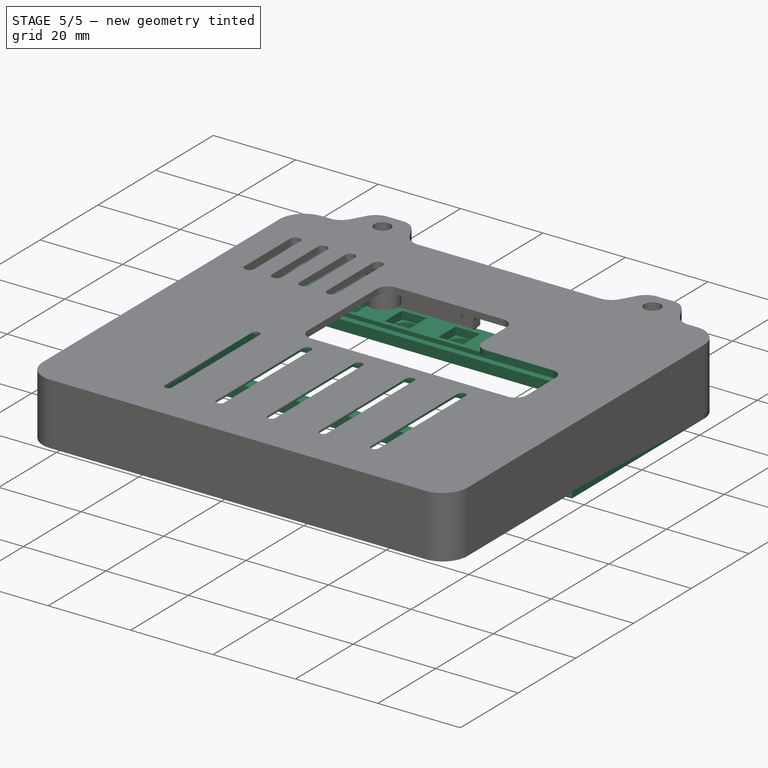
[diagram: stage 5 of 5 — iso view after this stage's code; geometry added in this stage tinted green]
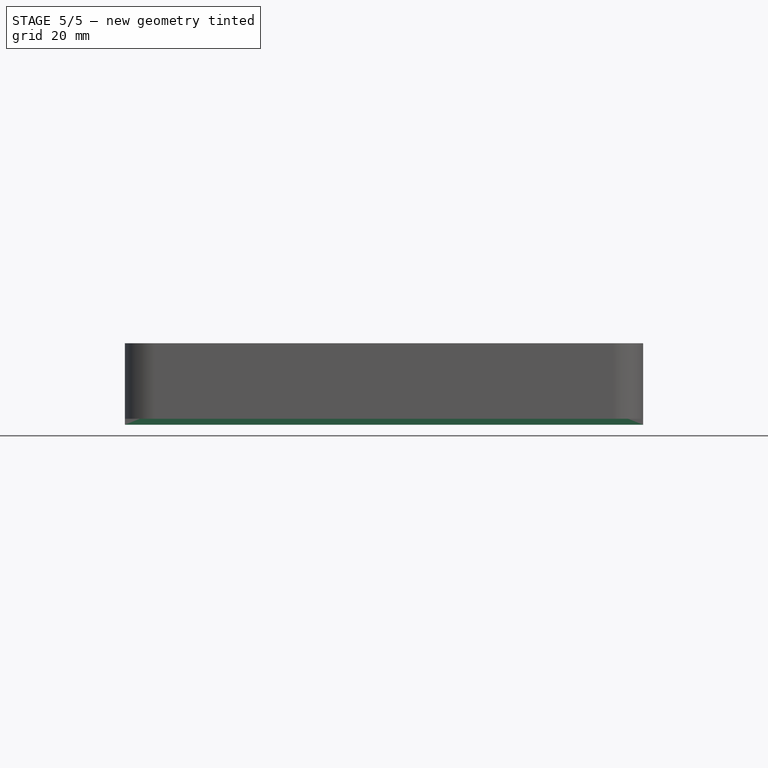
[diagram: stage 5 of 5 — front view after this stage's code; geometry added in this stage tinted green]
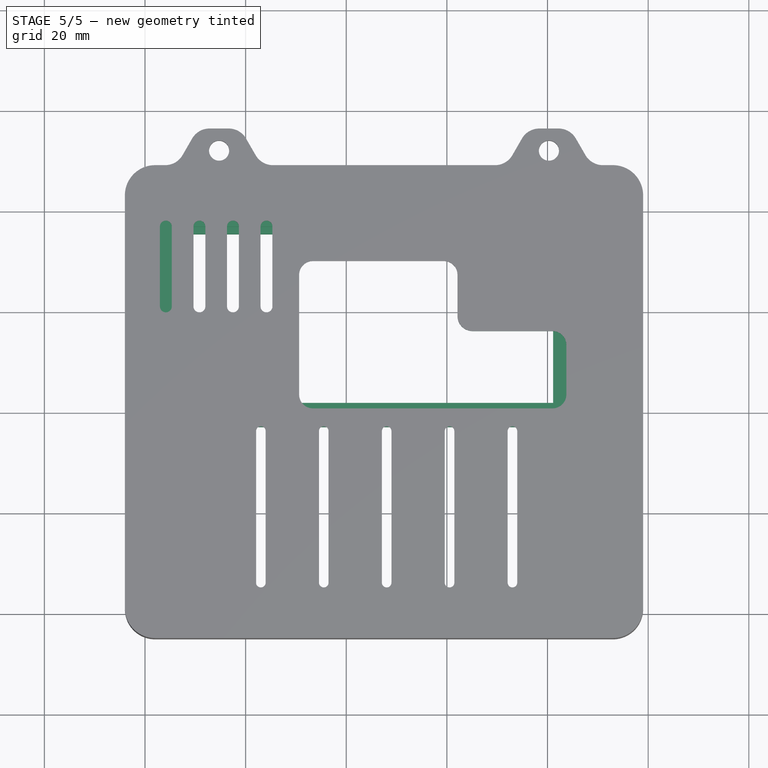
[diagram: stage 5 of 5 — top view after this stage's code; geometry added in this stage tinted green]
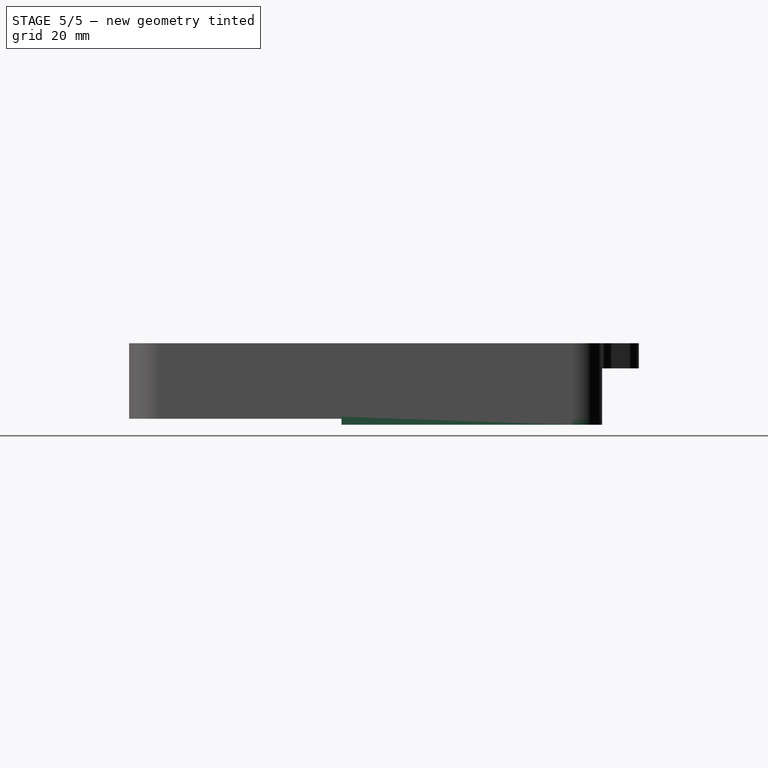
[diagram: stage 5 of 5 — right view after this stage's code; geometry added in this stage tinted green]
FEATURE [Part::FeaturePython] Facebinder  # WARN: FeaturePython — macro-defined, semantics opaque (R4)
  Faces = -> [Pad003]
FEATURE [Part::Extrusion] Extrude_Facebinder  label="Facebinder_Extrude"
  Base = -> Facebinder
  Dir = (0,0,1.5)
  Solid = true
FEATURE [Part::Cut] Cut003
  Base = -> Pad003
  Tool = -> Extrude_Facebinder
FEATURE [Sketcher::SketchObject] Sketch021
  Placement = pos=(0,0,12.7) rot=(0,0,1;0rad)
  Support = -> Cut003 [Face32]
  sketch-geometry (4):
    g0: ArcOfCircle CenterX=23.0286 CenterY=6.02224 CenterZ=0 NormalX=0 NormalY=0 NormalZ=1 Radius=0.950253 StartAngle=3.14159 EndAngle=6.28319
    g1: ArcOfCircle CenterX=23.0286 CenterY=36.1407 CenterZ=0 NormalX=0 NormalY=0 NormalZ=1 Radius=0.950253 StartAngle=0 EndAngle=3.14159
    g2: LineSegment StartX=23.9788 StartY=6.02224 StartZ=0 EndX=23.9788 EndY=36.1407 EndZ=0
    g3: LineSegment StartX=22.0783 StartY=6.02224 StartZ=0 EndX=22.0783 EndY=36.1407 EndZ=0
  constraints (6):
    c: Tangent(g0,g3) = 1.5708
    c: Tangent(g0,g2) = -1.5708
    c: Tangent(g2,g1) = -1.5708
    c: Tangent(g3,g1) = 1.5708
    c: Vertical(g2)
    c: Equal(g0,g1)
FEATURE [PartDesign::Pocket] Pocket001
  Length = 5
  Sketch = -> Sketch021
  Type = 0
FEATURE [PartDesign::LinearPattern] LinearPattern001
  Direction = -> Sketch021 [H_Axis]
  Length = 50
  Occurrences = 5
  Originals = -> [Pocket001]
FEATURE [Sketcher::SketchObject] Sketch022
  ExternalGeometry = -> [LinearPattern001]
  Placement = pos=(0,0,11.2) rot=(1,0,0;3.14159rad)
  Support = -> LinearPattern001 [Face4]
  sketch-geometry (4):
    g0: LineSegment StartX=22.0783 StartY=-5.07198 StartZ=0 EndX=73.9788 EndY=-5.07198 EndZ=0
    g1: LineSegment StartX=73.9788 StartY=-5.07198 StartZ=0 EndX=73.9788 EndY=-37.091 EndZ=0
    g2: LineSegment StartX=73.9788 StartY=-37.091 StartZ=0 EndX=22.0783 EndY=-37.091 EndZ=0
    g3: LineSegment StartX=22.0783 StartY=-37.091 StartZ=0 EndX=22.0783 EndY=-5.07198 EndZ=0
  constraints (12):
    c: Coincident(g0,g1)
    c: Coincident(g1,g2)
    c: Coincident(g2,g3)
    c: Coincident(g3,g0)
    c: Horizontal(g0)
    c: Horizontal(g2)
    c: Vertical(g1)
    c: Vertical(g3)
    c: PointOnObject(g-4,g1)
    c: Tangent(g-4,g2)
    c: PointOnObject(g-3,g3)
    c: Tangent(g0,g-3)
FEATURE [PartDesign::Pocket] Pocket002
  Length = 1
  Sketch = -> Sketch022
  Type = 0
FEATURE [Sketcher::SketchObject] Sketch023
  ExternalGeometry = -> [Compound001]
  Placement = pos=(0,0,0) rot=(1,0,0;3.14159rad)
  Support = -> Compound001 [Face29]
  sketch-geometry (59):
    g0: LineSegment StartX=12 StartY=-78 StartZ=0 EndX=18 EndY=-78 EndZ=0
    g1: LineSegment StartX=18 StartY=-78 StartZ=0 EndX=18 EndY=-84 EndZ=0
    g2: LineSegment StartX=18 StartY=-84 StartZ=0 EndX=12 EndY=-84 EndZ=0
    g3: LineSegment StartX=12 StartY=-84 StartZ=0 EndX=12 EndY=-78 EndZ=0
    g4: LineSegment StartX=25 StartY=-78 StartZ=0 EndX=31 EndY=-78 EndZ=0
    g5: LineSegment StartX=31 StartY=-78 StartZ=0 EndX=31 EndY=-84 EndZ=0
    g6: LineSegment StartX=31 StartY=-84 StartZ=0 EndX=25 EndY=-84 EndZ=0
    g7: LineSegment StartX=25 StartY=-84 StartZ=0 EndX=25 EndY=-78 EndZ=0
    g8: LineSegment StartX=38 StartY=-78 StartZ=0 EndX=44 EndY=-78 EndZ=0
    g9: LineSegment StartX=44 StartY=-78 StartZ=0 EndX=44 EndY=-84 EndZ=0
    g10: LineSegment StartX=44 StartY=-84 StartZ=0 EndX=38 EndY=-84 EndZ=0
    g11: LineSegment StartX=38 StartY=-84 StartZ=0 EndX=38 EndY=-78 EndZ=0
    g12: LineSegment StartX=51 StartY=-78 StartZ=0 EndX=57 EndY=-78 EndZ=0
    g13: LineSegment StartX=57 StartY=-78 StartZ=0 EndX=57 EndY=-84 EndZ=0
    g14: LineSegment StartX=57 StartY=-84 StartZ=0 EndX=51 EndY=-84 EndZ=0
    g15: LineSegment StartX=51 StartY=-84 StartZ=0 EndX=51 EndY=-78 EndZ=0
    g16: LineSegment StartX=64 StartY=-78 StartZ=0 EndX=70 EndY=-78 EndZ=0
    g17: LineSegment StartX=70 StartY=-78 StartZ=0 EndX=70 EndY=-84 EndZ=0
    g18: LineSegment StartX=70 StartY=-84 StartZ=0 EndX=64 EndY=-84 EndZ=0
    g19: LineSegment StartX=64 StartY=-84 StartZ=0 EndX=64 EndY=-78 EndZ=0
    g20: LineSegment StartX=77 StartY=-78 StartZ=0 EndX=83 EndY=-78 EndZ=0
    g21: LineSegment StartX=83 StartY=-78 StartZ=0 EndX=83 EndY=-84 EndZ=0
    g22: LineSegment StartX=83 StartY=-84 StartZ=0 EndX=77 EndY=-84 EndZ=0
    g23: LineSegment StartX=77 StartY=-84 StartZ=0 EndX=77 EndY=-78 EndZ=0
    g24: LineSegment [constr] StartX=17.55 StartY=-78.45 StartZ=0 EndX=18 EndY=-78 EndZ=0
    g25: LineSegment [constr] StartX=12.45 StartY=-83.55 StartZ=0 EndX=12 EndY=-84 EndZ=0
    g26: LineSegment [constr] StartX=17.55 StartY=-83.55 StartZ=0 EndX=18 EndY=-84 EndZ=0
    g27: LineSegment [constr] StartX=25.45 StartY=-83.55 StartZ=0 EndX=25 EndY=-84 EndZ=0
    g28: LineSegment [constr] StartX=30.55 StartY=-83.55 StartZ=0 EndX=31 EndY=-84 EndZ=0
    g29: LineSegment [constr] StartX=30.55 StartY=-78.45 StartZ=0 EndX=31 EndY=-78 EndZ=0
    g30: LineSegment [constr] StartX=38.45 StartY=-83.55 StartZ=0 EndX=38 EndY=-84 EndZ=0
    g31: LineSegment [constr] StartX=43.55 StartY=-83.55 StartZ=0 EndX=44 EndY=-84 EndZ=0
    g32: LineSegment [constr] StartX=43.55 StartY=-78.45 StartZ=0 EndX=44 EndY=-78 EndZ=0
    g33: LineSegment [constr] StartX=51.45 StartY=-83.55 StartZ=0 EndX=51 EndY=-84 EndZ=0
    g34: LineSegment [constr] StartX=56.55 StartY=-83.55 StartZ=0 EndX=57 EndY=-84 EndZ=0
    g35: LineSegment [constr] StartX=56.55 StartY=-78.45 StartZ=0 EndX=57 EndY=-78 EndZ=0
    g36: LineSegment [constr] StartX=64.45 StartY=-83.55 StartZ=0 EndX=64 EndY=-84 EndZ=0
    g37: LineSegment [constr] StartX=69.55 StartY=-83.55 StartZ=0 EndX=70 EndY=-84 EndZ=0
    g38: LineSegment [constr] StartX=69.55 StartY=-78.45 StartZ=0 EndX=70 EndY=-78 EndZ=0
    g39: LineSegment [constr] StartX=77.45 StartY=-83.55 StartZ=0 EndX=77 EndY=-84 EndZ=0
    g40: LineSegment [constr] StartX=82.55 StartY=-83.55 StartZ=0 EndX=83 EndY=-84 EndZ=0
    g41: LineSegment [constr] StartX=82.55 StartY=-78.45 StartZ=0 EndX=83 EndY=-78 EndZ=0
    g42: LineSegment StartX=87.6 StartY=-77 StartZ=0 EndX=7.5 EndY=-77 EndZ=0
    g43: LineSegment StartX=7.5 StartY=-77 StartZ=0 EndX=7.5 EndY=-40 EndZ=0
    g44: LineSegment StartX=7.5 StartY=-40 StartZ=0 EndX=87.6 EndY=-40 EndZ=0
    g45: LineSegment StartX=87.6 StartY=-40 StartZ=0 EndX=87.6 EndY=-49.2 EndZ=0
    g46: LineSegment StartX=87.6 StartY=-49.2 StartZ=0 EndX=91.9 EndY=-49.2 EndZ=0
    g47: LineSegment StartX=91.9 StartY=-49.2 StartZ=0 EndX=91.9 EndY=-67.8 EndZ=0
    g48: LineSegment StartX=91.9 StartY=-67.8 StartZ=0 EndX=87.6 EndY=-67.8 EndZ=0
    g49: LineSegment StartX=87.6 StartY=-67.8 StartZ=0 EndX=87.6 EndY=-77 EndZ=0
    g50: Circle CenterX=3 CenterY=-57 CenterZ=0 NormalX=0 NormalY=0 NormalZ=1 Radius=1.5
    g51: Circle CenterX=91 CenterY=-75 CenterZ=0 NormalX=0 NormalY=0 NormalZ=1 Radius=1.5
    g52: Circle CenterX=91 CenterY=-42 CenterZ=0 NormalX=0 NormalY=0 NormalZ=1 Radius=1.5
    g53: LineSegment StartX=0 StartY=-81 StartZ=0 EndX=-0.00101432 EndY=-37.1896 EndZ=0
    g54: LineSegment StartX=-0.00101432 StartY=-37.1896 StartZ=0 EndX=95 EndY=-37.1896 EndZ=0
    g55: LineSegment StartX=95 StartY=-37.1896 StartZ=0 EndX=95 EndY=-81 EndZ=0
    g56: ArcOfCircle CenterX=90.9999 CenterY=-80.9999 CenterZ=0 NormalX=0 NormalY=0 NormalZ=1 Radius=4.00009 StartAngle=4.71241 EndAngle=6.28316
    g57: ArcOfCircle CenterX=4.00009 CenterY=-80.9999 CenterZ=0 NormalX=0 NormalY=0 NormalZ=1 Radius=4.00009 StartAngle=3.14162 EndAngle=4.71237
    g58: LineSegment StartX=4 StartY=-85 StartZ=0 EndX=91 EndY=-85 EndZ=0
  constraints (144):
    c: Coincident(g0,g1)
    c: Coincident(g1,g2)
    c: Coincident(g2,g3)
    c: Coincident(g3,g0)
    c: Horizontal(g0)
    c: Horizontal(g2)
    c: Vertical(g1)
    c: Vertical(g3)
    c: Coincident(g4,g5)
    c: Coincident(g5,g6)
    c: Coincident(g6,g7)
    c: Coincident(g7,g4)
    c: Horizontal(g4)
    c: Horizontal(g6)
    c: Vertical(g5)
    c: Vertical(g7)
    c: Coincident(g8,g9)
    c: Coincident(g9,g10)
    c: Coincident(g10,g11)
    c: Coincident(g11,g8)
    c: Horizontal(g8)
    c: Horizontal(g10)
    c: Vertical(g9)
    c: Vertical(g11)
    c: Coincident(g12,g13)
    c: Coincident(g13,g14)
    c: Coincident(g14,g15)
    c: Coincident(g15,g12)
    c: Horizontal(g12)
    c: Horizontal(g14)
    c: Vertical(g13)
    c: Vertical(g15)
    c: Coincident(g16,g17)
    c: Coincident(g17,g18)
    c: Coincident(g18,g19)
    c: Coincident(g19,g16)
    c: Horizontal(g16)
    c: Horizontal(g18)
    c: Vertical(g17)
    c: Vertical(g19)
    c: Coincident(g20,g21)
    c: Coincident(g21,g22)
    c: Coincident(g22,g23)
    c: Coincident(g23,g20)
    c: Horizontal(g20)
    c: Horizontal(g22)
    c: Vertical(g21)
    c: Vertical(g23)
    c: Coincident(g24,g-7)
    c: Coincident(g24,g0)
    c: Coincident(g25,g-8)
    c: Coincident(g25,g2)
    c: Coincident(g26,g-8)
    c: Coincident(g26,g1)
    c: Coincident(g27,g-10)
    c: Coincident(g27,g6)
    c: Coincident(g28,g-10)
    c: Coincident(g28,g5)
    c: Coincident(g29,g-9)
    c: Coincident(g29,g4)
    c: Coincident(g30,g-12)
    c: Coincident(g30,g10)
    c: Coincident(g31,g-12)
    c: Coincident(g31,g9)
    c: Coincident(g32,g-11)
    c: Coincident(g32,g8)
    c: Coincident(g33,g-14)
    c: Coincident(g33,g14)
    c: Coincident(g34,g-14)
    c: Coincident(g34,g13)
    c: Coincident(g35,g-13)
    c: Coincident(g35,g12)
    c: Coincident(g36,g-16)
    c: Coincident(g36,g18)
    c: Coincident(g37,g-16)
    c: Coincident(g37,g17)
    c: Coincident(g38,g-15)
    c: Coincident(g38,g16)
    c: Coincident(g39,g-18)
    c: Coincident(g39,g22)
    c: Coincident(g40,g-18)
    c: Coincident(g40,g21)
    c: Coincident(g41,g-17)
    c: Coincident(g41,g20)
    c: Equal(g24,g26)
    c: Equal(g26,g25)
    c: Equal(g27,g28)
    c: Equal(g28,g29)
    c: Equal(g30,g31)
    c: Equal(g31,g32)
    c: Equal(g35,g34)
    c: Equal(g34,g33)
    c: Equal(g38,g37)
    c: Equal(g37,g36)
    c: Equal(g41,g40)
    c: Equal(g40,g39)
    c: Equal(g22,g18)
    c: Equal(g18,g14)
    c: Equal(g14,g10)
    c: Equal(g10,g6)
    c: Equal(g6,g2)
    c: Equal(g2,g3)
    c: Equal(g3,g7)
    c: Equal(g7,g11)
    c: Equal(g11,g15)
    c: Equal(g15,g19)
    c: Equal(g19,g23)
    c: Coincident(g-6,g42)
    c: Coincident(g42,g-6)
    c: Coincident(g42,g43)
    c: Coincident(g43,g-5)
    c: Coincident(g43,g44)
    c: Coincident(g44,g-4)
    c: Coincident(g44,g45)
    c: PointOnObject(g45,g-4)
    c: Coincident(g45,g46)
    c: Coincident(g46,g-28)
    c: Horizontal(g46)
    c: Coincident(g46,g47)
    c: Coincident(g47,g-29)
    c: Coincident(g47,g48)
    c: PointOnObject(g48,g-4)
    c: Horizontal(g48)
    c: Coincident(g48,g49)
    c: Coincident(g49,g42)
    c: Coincident(g50,g-21)
    c: Coincident(g51,g-19)
    c: Coincident(g52,g-20)
    c: Radius(g52) = 1.5
    c: Equal(g52,g50)
    c: Equal(g52,g51)
    c: Tangent(g-31,g53) = 1.5708
    c: Coincident(g53,g54)
    c: PointOnObject(g54,g-25)
    c: Horizontal(g54)
    c: Coincident(g54,g55)
    c: Coincident(g55,g-32)
    c: Coincident(g56,g55)
    c: Coincident(g57,g53)
    c: Equal(g56,g-32)
    c: Equal(g-32,g57)
    c: Distance(g21,g-24) = 1
    c: Distance(g20,g-6) = 1
    c: Distance(g21) = 6
FEATURE [App::DocumentObjectGroup] Grupo  label="badgeModel"
  Group = -> [Compound001,Sketch012,Sketch016,Sketch017,Sketch023]
FEATURE [Part::Extrusion] Extrude_Sketch023  label="Sketch023_Extrude"
  Base = -> Sketch023
  Dir = (0,0,-1)
  Solid = true
FEATURE [Sketcher::SketchObject] Sketch024
  ExternalGeometry = -> [Extrude_Sketch023]
  Placement = pos=(0,0,-1) rot=(1,0,0;3.14159rad)
  Support = -> Extrude_Sketch023 [Face43]
  sketch-geometry (38):
    g0: LineSegment StartX=31 StartY=-78 StartZ=0 EndX=25 EndY=-78 EndZ=0
    g1: LineSegment StartX=25 StartY=-78 StartZ=0 EndX=25 EndY=-84 EndZ=0
    g2: LineSegment StartX=25 StartY=-84 StartZ=0 EndX=31 EndY=-84 EndZ=0
    g3: LineSegment StartX=31 StartY=-84 StartZ=0 EndX=31 EndY=-78 EndZ=0
    g4: LineSegment StartX=38 StartY=-78 StartZ=0 EndX=44 EndY=-78 EndZ=0
    g5: LineSegment StartX=44 StartY=-78 StartZ=0 EndX=44 EndY=-84 EndZ=0
    g6: LineSegment StartX=44 StartY=-84 StartZ=0 EndX=38 EndY=-84 EndZ=0
    g7: LineSegment StartX=38 StartY=-84 StartZ=0 EndX=38 EndY=-78 EndZ=0
    g8: LineSegment StartX=51 StartY=-78 StartZ=0 EndX=57 EndY=-78 EndZ=0
    g9: LineSegment StartX=57 StartY=-78 StartZ=0 EndX=57 EndY=-84 EndZ=0
    g10: LineSegment StartX=57 StartY=-84 StartZ=0 EndX=51 EndY=-84 EndZ=0
    g11: LineSegment StartX=51 StartY=-84 StartZ=0 EndX=51 EndY=-78 EndZ=0
    g12: LineSegment StartX=64 StartY=-78 StartZ=0 EndX=70 EndY=-78 EndZ=0
    g13: LineSegment StartX=70 StartY=-78 StartZ=0 EndX=70 EndY=-84 EndZ=0
    g14: LineSegment StartX=70 StartY=-84 StartZ=0 EndX=64 EndY=-84 EndZ=0
    g15: LineSegment StartX=64 StartY=-84 StartZ=0 EndX=64 EndY=-78 EndZ=0
    g16: LineSegment StartX=77 StartY=-78 StartZ=0 EndX=83 EndY=-78 EndZ=0
    g17: LineSegment StartX=83 StartY=-78 StartZ=0 EndX=83 EndY=-84 EndZ=0
    g18: LineSegment StartX=83 StartY=-84 StartZ=0 EndX=77 EndY=-84 EndZ=0
    g19: LineSegment StartX=77 StartY=-84 StartZ=0 EndX=77 EndY=-78 EndZ=0
    g20: LineSegment StartX=12 StartY=-78 StartZ=0 EndX=18 EndY=-78 EndZ=0
    g21: LineSegment StartX=18 StartY=-78 StartZ=0 EndX=18 EndY=-84 EndZ=0
    g22: LineSegment StartX=18 StartY=-84 StartZ=0 EndX=12 EndY=-84 EndZ=0
    g23: LineSegment StartX=12 StartY=-84 StartZ=0 EndX=12 EndY=-78 EndZ=0
    g24: LineSegment StartX=81.1 StartY=-42 StartZ=0 EndX=9 EndY=-42 EndZ=0
    g25: LineSegment StartX=9 StartY=-42 StartZ=0 EndX=9 EndY=-75.5 EndZ=0
    g26: LineSegment StartX=9 StartY=-75.5 StartZ=0 EndX=81.1 EndY=-75.5 EndZ=0
    g27: LineSegment StartX=81.1 StartY=-75.5 StartZ=0 EndX=81.1 EndY=-42 EndZ=0
    g28: ArcOfCircle CenterX=3 CenterY=-57 CenterZ=0 NormalX=0 NormalY=0 NormalZ=1 Radius=3.25 StartAngle=3.53596 EndAngle=9.03045
    g29: Circle CenterX=91 CenterY=-42 CenterZ=0 NormalX=0 NormalY=0 NormalZ=1 Radius=3.25
    g30: Circle CenterX=91 CenterY=-75 CenterZ=0 NormalX=0 NormalY=0 NormalZ=1 Radius=3.25
    g31: LineSegment StartX=0 StartY=-81 StartZ=0 EndX=-0.000526749 EndY=-58.2487 EndZ=0
    g32: LineSegment StartX=-0.00101432 StartY=-37.1896 StartZ=0 EndX=95 EndY=-37.1896 EndZ=0
    g33: LineSegment StartX=95 StartY=-37.1896 StartZ=0 EndX=95 EndY=-81 EndZ=0
    g34: LineSegment StartX=4 StartY=-85 StartZ=0 EndX=91 EndY=-85 EndZ=0
    g35: ArcOfCircle CenterX=90.9999 CenterY=-80.9999 CenterZ=0 NormalX=0 NormalY=0 NormalZ=1 Radius=4.00009 StartAngle=4.71241 EndAngle=6.28316
    g36: ArcOfCircle CenterX=4.00009 CenterY=-80.9999 CenterZ=0 NormalX=0 NormalY=0 NormalZ=1 Radius=4.00009 StartAngle=3.14162 EndAngle=4.71237
    g37: LineSegment StartX=-0.000584569 StartY=-55.7514 StartZ=0 EndX=-0.00101432 EndY=-37.1896 EndZ=0
  constraints (95):
    c: Coincident(g0,g1)
    c: Coincident(g1,g2)
    c: Coincident(g2,g3)
    c: Coincident(g3,g0)
    c: Horizontal(g0)
    c: Horizontal(g2)
    c: Vertical(g1)
    c: Vertical(g3)
    c: Coincident(g0,g-4)
    c: Coincident(g1,g-3)
    c: Coincident(g4,g5)
    c: Coincident(g5,g6)
    c: Coincident(g6,g7)
    c: Coincident(g7,g4)
    c: Horizontal(g4)
    c: Horizontal(g6)
    c: Vertical(g5)
    c: Vertical(g7)
    c: Coincident(g4,g-5)
    c: Coincident(g5,g-6)
    c: Coincident(g8,g9)
    c: Coincident(g9,g10)
    c: Coincident(g10,g11)
    c: Coincident(g11,g8)
    c: Horizontal(g8)
    c: Horizontal(g10)
    c: Vertical(g9)
    c: Vertical(g11)
    c: Coincident(g8,g-7)
    c: Coincident(g9,g-8)
    c: Coincident(g12,g13)
    c: Coincident(g13,g14)
    c: Coincident(g14,g15)
    c: Coincident(g15,g12)
    c: Horizontal(g12)
    c: Horizontal(g14)
    c: Vertical(g13)
    c: Vertical(g15)
    c: Coincident(g12,g-9)
    c: Coincident(g13,g-10)
    c: Coincident(g16,g17)
    c: Coincident(g17,g18)
    c: Coincident(g18,g19)
    c: Coincident(g19,g16)
    c: Horizontal(g16)
    c: Horizontal(g18)
    c: Vertical(g17)
    c: Vertical(g19)
    c: Coincident(g16,g-11)
    c: Coincident(g17,g-12)
    c: Coincident(g20,g21)
    c: Coincident(g21,g22)
    c: Coincident(g22,g23)
    c: Coincident(g23,g20)
    c: Horizontal(g20)
    c: Horizontal(g22)
    c: Vertical(g21)
    c: Vertical(g23)
    c: Coincident(g20,g-13)
    c: Coincident(g21,g-14)
    c: Coincident(g24,g25)
    c: Coincident(g25,g26)
    c: Coincident(g26,g27)
    c: Coincident(g27,g24)
    c: Horizontal(g24)
    c: Horizontal(g26)
    c: Vertical(g25)
    c: Vertical(g27)
    c: Coincident(g28,g-17)
    c: Coincident(g29,g-16)
    c: Coincident(g30,g-15)
    c: Radius(g30) = 3.25
    c: Equal(g30,g29)
    c: Equal(g30,g28)
    c: Tangent(g-22,g31) = 1.5708
    c: Coincident(g37,g32)
    c: Coincident(g32,g-20)
    c: Horizontal(g32)
    c: Coincident(g32,g33)
    c: Coincident(g33,g-21)
    c: Coincident(g34,g-22)
    c: Coincident(g34,g-21)
    c: Coincident(g35,g33)
    c: Coincident(g35,g34)
    c: Equal(g35,g-21)
    c: Coincident(g36,g31)
    c: Coincident(g36,g34)
    c: Equal(g36,g-22)
    c: Coincident(g31,g28)
    c: Coincident(g37,g28)
    c: Tangent(g31,g37)
    c: Distance(g-19,g27) = 6.5
    c: Distance(g24,g-23) = 1.5
    c: Distance(g24,g-24) = 2
    c: Distance(g26,g-25) = 1.5
FEATURE [PartDesign::Pad] Pad004
  Length = 2.5
  Length2 = 100
  Sketch = -> Sketch024
  Type = 0
FEATURE [Sketcher::SketchObject] Sketch026
  ExternalGeometry = -> [Pocket002]
  Placement = pos=(0,0,-2.3) rot=(1,0,0;3.14159rad)
  Support = -> Pocket002 [Face49]
FEATURE [Sketcher::SketchObject] Sketch027
  ExternalGeometry = -> [Pad004]
  Placement = pos=(0,0,-3.5) rot=(1,0,0;3.14159rad)
  Support = -> Pad004 [Face18]
  sketch-geometry (54):
    g0: LineSegment [constr] StartX=18 StartY=-78 StartZ=0 EndX=15 EndY=-81 EndZ=0
    g1: LineSegment [constr] StartX=15 StartY=-81 StartZ=0 EndX=12 EndY=-84 EndZ=0
    g2: LineSegment [constr] StartX=31 StartY=-78 StartZ=0 EndX=28 EndY=-81 EndZ=0
    g3: LineSegment [constr] StartX=28 StartY=-81 StartZ=0 EndX=25 EndY=-84 EndZ=0
    g4: LineSegment [constr] StartX=44 StartY=-78 StartZ=0 EndX=41 EndY=-81 EndZ=0
    g5: LineSegment [constr] StartX=41 StartY=-81 StartZ=0 EndX=38 EndY=-84 EndZ=0
    g6: LineSegment [constr] StartX=57 StartY=-78 StartZ=0 EndX=54 EndY=-81 EndZ=0
    g7: LineSegment [constr] StartX=54 StartY=-81 StartZ=0 EndX=51 EndY=-84 EndZ=0
    g8: LineSegment [constr] StartX=70 StartY=-78 StartZ=0 EndX=67 EndY=-81 EndZ=0
    g9: LineSegment [constr] StartX=67 StartY=-81 StartZ=0 EndX=64 EndY=-84 EndZ=0
    g10: LineSegment [constr] StartX=83 StartY=-78 StartZ=0 EndX=80 EndY=-81 EndZ=0
    g11: LineSegment [constr] StartX=80 StartY=-81 StartZ=0 EndX=77 EndY=-84 EndZ=0
    g12: Circle CenterX=15 CenterY=-81 CenterZ=0 NormalX=0 NormalY=0 NormalZ=1 Radius=2.69061
    g13: Circle CenterX=28 CenterY=-81 CenterZ=0 NormalX=0 NormalY=0 NormalZ=1 Radius=2.69061
    g14: Circle CenterX=41 CenterY=-81 CenterZ=0 NormalX=0 NormalY=0 NormalZ=1 Radius=2.69061
    g15: Circle CenterX=54 CenterY=-81 CenterZ=0 NormalX=0 NormalY=0 NormalZ=1 Radius=2.69061
    g16: Circle CenterX=67 CenterY=-81 CenterZ=0 NormalX=0 NormalY=0 NormalZ=1 Radius=2.69061
    g17: Circle CenterX=80 CenterY=-81 CenterZ=0 NormalX=0 NormalY=0 NormalZ=1 Radius=2.69061
    g18: LineSegment StartX=18 StartY=-78 StartZ=0 EndX=12 EndY=-78 EndZ=0
    g19: LineSegment StartX=12 StartY=-78 StartZ=0 EndX=12 EndY=-84 EndZ=0
    g20: LineSegment StartX=12 StartY=-84 StartZ=0 EndX=18 EndY=-84 EndZ=0
    g21: LineSegment StartX=18 StartY=-84 StartZ=0 EndX=18 EndY=-78 EndZ=0
    g22: LineSegment StartX=31 StartY=-78 StartZ=0 EndX=25 EndY=-78 EndZ=0
    g23: LineSegment StartX=25 StartY=-78 StartZ=0 EndX=25 EndY=-84 EndZ=0
    g24: LineSegment StartX=25 StartY=-84 StartZ=0 EndX=31 EndY=-84 EndZ=0
    g25: LineSegment StartX=31 StartY=-84 StartZ=0 EndX=31 EndY=-78 EndZ=0
    g26: LineSegment StartX=44 StartY=-78 StartZ=0 EndX=38 EndY=-78 EndZ=0
    g27: LineSegment StartX=38 StartY=-78 StartZ=0 EndX=38 EndY=-84 EndZ=0
    g28: LineSegment StartX=38 StartY=-84 StartZ=0 EndX=44 EndY=-84 EndZ=0
    g29: LineSegment StartX=44 StartY=-84 StartZ=0 EndX=44 EndY=-78 EndZ=0
    g30: LineSegment StartX=57 StartY=-78 StartZ=0 EndX=51 EndY=-78 EndZ=0
    g31: LineSegment StartX=51 StartY=-78 StartZ=0 EndX=51 EndY=-84 EndZ=0
    g32: LineSegment StartX=51 StartY=-84 StartZ=0 EndX=57 EndY=-84 EndZ=0
    g33: LineSegment StartX=57 StartY=-84 StartZ=0 EndX=57 EndY=-78 EndZ=0
    g34: LineSegment StartX=70 StartY=-78 StartZ=0 EndX=64 EndY=-78 EndZ=0
    g35: LineSegment StartX=64 StartY=-78 StartZ=0 EndX=64 EndY=-84 EndZ=0
    g36: LineSegment StartX=64 StartY=-84 StartZ=0 EndX=70 EndY=-84 EndZ=0
    g37: LineSegment StartX=70 StartY=-84 StartZ=0 EndX=70 EndY=-78 EndZ=0
    g38: LineSegment StartX=83 StartY=-78 StartZ=0 EndX=77 EndY=-78 EndZ=0
    g39: LineSegment StartX=77 StartY=-78 StartZ=0 EndX=77 EndY=-84 EndZ=0
    g40: LineSegment StartX=77 StartY=-84 StartZ=0 EndX=83 EndY=-84 EndZ=0
    g41: LineSegment StartX=83 StartY=-84 StartZ=0 EndX=83 EndY=-78 EndZ=0
    g42: ArcOfCircle CenterX=3 CenterY=-57 CenterZ=0 NormalX=0 NormalY=0 NormalZ=1 Radius=3.25 StartAngle=2.74727 EndAngle=3.53596
    g43: LineSegment StartX=-0.000584569 StartY=-55.7514 StartZ=0 EndX=-0.00101432 EndY=-37.1896 EndZ=0
    g44: LineSegment StartX=-0.00101432 StartY=-37.1896 StartZ=0 EndX=-12.0117 EndY=-37.1896 EndZ=0
    g45: LineSegment StartX=-12.0117 StartY=-37.1896 StartZ=0 EndX=-12.0117 EndY=-92.5354 EndZ=0
    g46: LineSegment StartX=-12.0117 StartY=-92.5354 StartZ=0 EndX=106.687 EndY=-92.5354 EndZ=0
    g47: LineSegment StartX=106.687 StartY=-92.5354 StartZ=0 EndX=106.687 EndY=-37.1896 EndZ=0
    g48: LineSegment StartX=106.687 StartY=-37.1896 StartZ=0 EndX=95 EndY=-37.1896 EndZ=0
    g49: LineSegment StartX=95 StartY=-37.1896 StartZ=0 EndX=95 EndY=-81 EndZ=0
    g50: LineSegment StartX=4 StartY=-85 StartZ=0 EndX=91 EndY=-85 EndZ=0
    g51: ArcOfCircle CenterX=90.9999 CenterY=-80.9999 CenterZ=0 NormalX=0 NormalY=0 NormalZ=1 Radius=4.00009 StartAngle=4.71241 EndAngle=6.28316
    g52: ArcOfCircle CenterX=4.00009 CenterY=-80.9999 CenterZ=0 NormalX=0 NormalY=0 NormalZ=1 Radius=4.00009 StartAngle=3.14162 EndAngle=4.71237
    g53: LineSegment StartX=-0.000526749 StartY=-58.2487 StartZ=0 EndX=0 EndY=-81 EndZ=0
  constraints (99):
    c: Coincident(g12,g0)
    c: Coincident(g13,g2)
    c: Coincident(g14,g4)
    c: Coincident(g15,g6)
    c: Coincident(g16,g8)
    c: Coincident(g17,g10)
    c: Equal(g17,g16)
    c: Equal(g16,g15)
    c: Equal(g15,g14)
    c: Equal(g14,g13)
    c: Equal(g13,g12)
    c: Coincident(g18,g19)
    c: Coincident(g19,g20)
    c: Coincident(g20,g21)
    c: Coincident(g21,g18)
    c: Horizontal(g18)
    c: Horizontal(g20)
    c: Vertical(g19)
    c: Vertical(g21)
    c: Coincident(g18,g0)
    c: Coincident(g19,g1)
    c: Coincident(g22,g23)
    c: Coincident(g23,g24)
    c: Coincident(g24,g25)
    c: Coincident(g25,g22)
    c: Horizontal(g22)
    c: Horizontal(g24)
    c: Vertical(g23)
    c: Vertical(g25)
    c: Coincident(g22,g2)
    c: Coincident(g23,g3)
    c: Coincident(g26,g27)
    c: Coincident(g27,g28)
    c: Coincident(g28,g29)
    c: Coincident(g29,g26)
    c: Horizontal(g26)
    c: Horizontal(g28)
    c: Vertical(g27)
    c: Vertical(g29)
    c: Coincident(g26,g4)
    c: Coincident(g27,g5)
    c: Coincident(g30,g31)
    c: Coincident(g31,g32)
    c: Coincident(g32,g33)
    c: Coincident(g33,g30)
    c: Horizontal(g30)
    c: Horizontal(g32)
    c: Vertical(g31)
    c: Vertical(g33)
    c: Coincident(g30,g6)
    c: Coincident(g31,g7)
    c: Coincident(g34,g35)
    c: Coincident(g35,g36)
    c: Coincident(g36,g37)
    c: Coincident(g37,g34)
    c: Horizontal(g34)
    c: Horizontal(g36)
    c: Vertical(g35)
    c: Vertical(g37)
    c: Coincident(g34,g8)
    c: Coincident(g35,g9)
    c: Coincident(g38,g39)
    c: Coincident(g39,g40)
    c: Coincident(g40,g41)
    c: Coincident(g41,g38)
    c: Horizontal(g38)
    c: Horizontal(g40)
    c: Vertical(g39)
    c: Vertical(g41)
    c: Coincident(g38,g10)
    c: Coincident(g39,g11)
    c: Coincident(g42,g-22)
    c: Coincident(g42,g-23)
    c: Equal(g42,g-3)
    c: Coincident(g42,g43)
    c: Coincident(g43,g-22)
    c: Coincident(g43,g44)
    c: Horizontal(g44)
    c: Coincident(g44,g45)
    c: Vertical(g45)
    c: Coincident(g45,g46)
    c: Horizontal(g46)
    c: Coincident(g46,g47)
    c: Vertical(g47)
    c: Coincident(g47,g48)
    c: Coincident(g48,g-21)
    c: Horizontal(g48)
    c: Coincident(g48,g49)
    c: Coincident(g49,g-21)
    c: Coincident(g50,g-19)
    c: Coincident(g50,g-20)
    c: Coincident(g51,g49)
    c: Coincident(g51,g50)
    c: Coincident(g52,g-23)
    c: Coincident(g50,g52)
    c: Equal(g52,g-19)
    c: Equal(g51,g-20)
    c: Coincident(g53,g42)
    c: Coincident(g52,g53)
FEATURE [PartDesign::Pad] Pad005
  Length = 1.6
  Length2 = 100
  Reversed = true
  Sketch = -> Sketch027
  Type = 0
FEATURE [Sketcher::SketchObject] Sketch028
  ExternalGeometry = -> [Pocket002]
  Placement = pos=(0,0,12.7) rot=(0,0,1;0rad)
  Support = -> Pocket002 [Face68]
  sketch-geometry (10):
    g0: LineSegment StartX=-4 StartY=83 StartZ=0 EndX=-4 EndY=30.8673 EndZ=0
    g1: LineSegment StartX=-4 StartY=30.8673 StartZ=0 EndX=-24.2909 EndY=30.8673 EndZ=0
    g2: LineSegment StartX=-24.2909 StartY=30.8673 StartZ=0 EndX=-24.2909 EndY=112.569 EndZ=0
    g3: LineSegment StartX=-24.2909 StartY=112.569 StartZ=0 EndX=123.01 EndY=112.569 EndZ=0
    g4: LineSegment StartX=123.01 StartY=112.569 StartZ=0 EndX=123.01 EndY=27.647 EndZ=0
    g5: LineSegment StartX=123.01 StartY=27.647 StartZ=0 EndX=99 EndY=27.647 EndZ=0
    g6: LineSegment StartX=99 StartY=27.647 StartZ=0 EndX=99 EndY=83 EndZ=0
    g7: LineSegment StartX=2 StartY=89 StartZ=0 EndX=93 EndY=89 EndZ=0
    g8: ArcOfCircle CenterX=2 CenterY=83 CenterZ=0 NormalX=0 NormalY=0 NormalZ=1 Radius=6 StartAngle=1.5708 EndAngle=3.14159
    g9: ArcOfCircle CenterX=93 CenterY=83 CenterZ=0 NormalX=0 NormalY=0 NormalZ=1 Radius=6 StartAngle=0 EndAngle=1.5708
  constraints (22):
    c: Tangent(g-3,g0) = -1.5708
    c: Coincident(g0,g1)
    c: Horizontal(g1)
    c: Coincident(g1,g2)
    c: Vertical(g2)
    c: Coincident(g2,g3)
    c: Horizontal(g3)
    c: Coincident(g3,g4)
    c: Vertical(g4)
    c: Coincident(g4,g5)
    c: Horizontal(g5)
    c: Coincident(g5,g6)
    c: Coincident(g6,g-4)
    c: Vertical(g6)
    c: Coincident(g7,g-3)
    c: Coincident(g7,g-4)
    c: Coincident(g8,g0)
    c: Coincident(g8,g7)
    c: Coincident(g9,g7)
    c: Coincident(g9,g6)
    c: Equal(g-4,g9)
    c: Equal(g8,g-3)
FEATURE [Part::Extrusion] Extrude_Sketch028  label="Sketch028_Extrude"
  Base = -> Sketch028
  Dir = (0,0,-30)
  Solid = true
FEATURE [Sketcher::SketchObject] Sketch029
  ExternalGeometry = -> [Pad005]
  Placement = pos=(0,0,-3.5) rot=(1,0,0;3.14159rad)
  Support = -> Pad005 [Face69]
  sketch-geometry (1):
    g0: Circle CenterX=3 CenterY=-57 CenterZ=0 NormalX=0 NormalY=0 NormalZ=1 Radius=3.3
  constraints (2):
    c: Coincident(g0,g-3)
    c: Radius(g0) = 3.3
FEATURE [PartDesign::Pocket] Pocket003
  Length = 2.6
  Sketch = -> Sketch029
  Type = 0
FEATURE [Part::Cut] Cut004
  Base = -> Pocket003
  Tool = -> Extrude_Sketch028
FEATURE [Part::Feature] Fusion001005  label="Fusion002"
  shape: bbox 108.7 x 26.4 x 1 mm, 114 faces, 11 solids (baked)
FEATURE [App::DocumentObjectGroup] Grupo002  label="Front"
  Group = -> [Extrude_Sketch023,Pad004,Fusion001005]
FEATURE [Part::FeaturePython] Clone001  label="Clone of Fusion002"  # Draft clone (typed FeaturePython)
  Objects = -> [Fusion001005]
  Placement = pos=(70,58,-3.6) rot=(0,0,-1;1.5708rad)
  Scale = (0.3,0.3,1)
FEATURE [Part::Cut] Cut005
  Base = -> Cut004
  Tool = -> Clone001
FEATURE [Sketcher::SketchObject] Sketch030
  ExternalGeometry = -> [Pocket002]
  Placement = pos=(0,0,11.2) rot=(1,0,0;3.14159rad)
  Support = -> Pocket002 [Face4]
  sketch-geometry (15):
    g0: LineSegment StartX=3 StartY=-54.5 StartZ=0 EndX=-0.5 EndY=-54.5 EndZ=0
    g1: LineSegment StartX=-0.5 StartY=-54.5 StartZ=0 EndX=-0.5 EndY=-59.5 EndZ=0
    g2: LineSegment StartX=-0.5 StartY=-59.5 StartZ=0 EndX=3 EndY=-59.5 EndZ=0
    g3: LineSegment [constr] StartX=3 StartY=-54.5 StartZ=0 EndX=3 EndY=-59.5 EndZ=0
    g4: ArcOfCircle CenterX=3 CenterY=-57 CenterZ=0 NormalX=0 NormalY=0 NormalZ=1 Radius=2.5 StartAngle=1.5708 EndAngle=4.71239
    g5: LineSegment [constr] StartX=91 StartY=-71.5 StartZ=0 EndX=91 EndY=-78.5 EndZ=0
    g6: LineSegment StartX=91 StartY=-78.5 StartZ=0 EndX=95.5 EndY=-78.5 EndZ=0
    g7: LineSegment StartX=95.5 StartY=-78.5 StartZ=0 EndX=95.5 EndY=-71.5 EndZ=0
    g8: LineSegment StartX=95.5 StartY=-71.5 StartZ=0 EndX=91 EndY=-71.5 EndZ=0
    g9: LineSegment [constr] StartX=91 StartY=-38.5 StartZ=0 EndX=91 EndY=-45.5 EndZ=0
    g10: LineSegment StartX=91 StartY=-45.5 StartZ=0 EndX=95.5 EndY=-45.5 EndZ=0
    g11: LineSegment StartX=95.5 StartY=-45.5 StartZ=0 EndX=95.5 EndY=-38.5 EndZ=0
    g12: LineSegment StartX=95.5 StartY=-38.5 StartZ=0 EndX=91 EndY=-38.5 EndZ=0
    g13: ArcOfCircle CenterX=91 CenterY=-75 CenterZ=0 NormalX=0 NormalY=0 NormalZ=1 Radius=3.5 StartAngle=4.71239 EndAngle=7.85398
    g14: ArcOfCircle CenterX=91 CenterY=-42 CenterZ=0 NormalX=0 NormalY=0 NormalZ=1 Radius=3.5 StartAngle=4.71239 EndAngle=7.85398
  constraints (45):
    c: PointOnObject(g0,g-3)
    c: Horizontal(g0)
    c: Coincident(g0,g1)
    c: Vertical(g1)
    c: Coincident(g2,g1)
    c: Horizontal(g2)
    c: PointOnObject(g2,g-3)
    c: Coincident(g3,g0)
    c: Coincident(g3,g2)
    c: Vertical(g3)
    c: PointOnObject(g-3,g3)
    c: PointOnObject(g1,g-4)
    c: Coincident(g2,g4)
    c: Coincident(g0,g4)
    c: Coincident(g4,g-3)
    c: PointOnObject(g5,g-7)
    c: PointOnObject(g5,g-7)
    c: Coincident(g5,g6)
    c: PointOnObject(g6,g-5)
    c: Coincident(g6,g7)
    c: PointOnObject(g7,g-5)
    c: Coincident(g7,g8)
    c: Coincident(g8,g5)
    c: Horizontal(g8)
    c: Horizontal(g6)
    c: PointOnObject(g-7,g5)
    c: PointOnObject(g9,g-6)
    c: PointOnObject(g9,g-6)
    c: Vertical(g9)
    c: Coincident(g9,g10)
    c: PointOnObject(g10,g-5)
    c: Coincident(g10,g11)
    c: PointOnObject(g11,g-5)
    c: Coincident(g11,g12)
    c: Coincident(g12,g9)
    c: PointOnObject(g-6,g9)
    c: Horizontal(g12)
    c: Horizontal(g10)
    c: Vertical(g5)
    c: Coincident(g13,g-7)
    c: Coincident(g13,g5)
    c: Coincident(g13,g5)
    c: Coincident(g14,g-6)
    c: Coincident(g14,g9)
    c: Coincident(g14,g9)
FEATURE [PartDesign::Pad] Pad006
  Length = 7
  Length2 = 100
  Sketch = -> Sketch030
  Type = 0
FEATURE [Sketcher::SketchObject] Sketch031
  ExternalGeometry = -> [Pad006]
  Placement = pos=(0,0,12.7) rot=(0,0,1;0rad)
  Support = -> Pad006 [Face83]
  sketch-geometry (6):
    g0: LineSegment StartX=58.3903 StartY=40.6606 StartZ=0 EndX=80.9869 EndY=40.6606 EndZ=0
    g1: LineSegment StartX=83.7391 StartY=43.4127 StartZ=0 EndX=83.7391 EndY=53.269 EndZ=0
    g2: LineSegment StartX=80.9869 StartY=56.0212 StartZ=0 EndX=58.3903 EndY=56.0212 EndZ=0
    g3: LineSegment StartX=58.3903 StartY=56.0212 StartZ=0 EndX=58.3903 EndY=40.6606 EndZ=0
    g4: ArcOfCircle CenterX=80.9869 CenterY=43.4127 CenterZ=0 NormalX=0 NormalY=0 NormalZ=1 Radius=2.75217 StartAngle=4.71239 EndAngle=6.28319
    g5: ArcOfCircle CenterX=80.9869 CenterY=53.269 CenterZ=0 NormalX=0 NormalY=0 NormalZ=1 Radius=2.75217 StartAngle=0 EndAngle=1.5708
  constraints (13):
    c: Coincident(g2,g3)
    c: Coincident(g3,g0)
    c: Horizontal(g0)
    c: Horizontal(g2)
    c: Vertical(g1)
    c: Vertical(g3)
    c: PointOnObject(g0,g-3)
    c: Tangent(g0,g4) = -1.5708
    c: Tangent(g1,g4) = -1.5708
    c: Tangent(g1,g5) = -1.5708
    c: Tangent(g2,g5) = -1.5708
    c: Equal(g5,g4)
    c: Equal(g4,g-5)
FEATURE [PartDesign::Pocket] Pocket004
  Length = 5
  Sketch = -> Sketch031
  Type = 0
FEATURE [PartDesign::Fillet] Fillet001
  Base = -> Pocket004 [Edge201]
  Radius = 3
FEATURE [App::DocumentObjectGroup] Grupo001  label="Case"
  Group = -> [Extrude_Sketch012,Pad,Pad001,Cut002,Chamfer,Chamfer001,Pocket,LinearPattern,Fillet,Chamfer002,Cut003,Pocket001,LinearPattern001,Pocket002,Sketch026,Sketch028,Pad006,Pocket004,Fillet001]
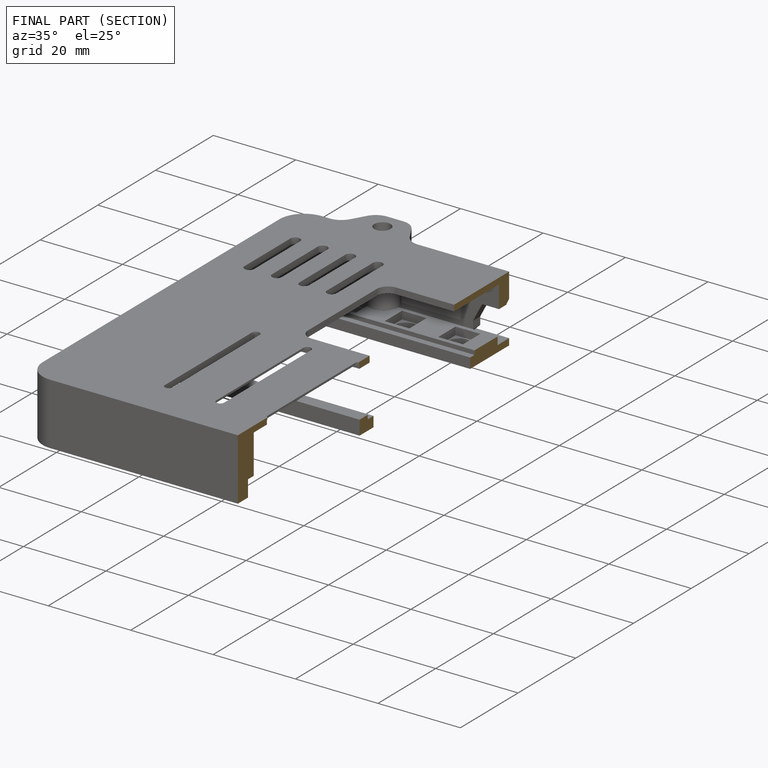
[diagram: finished part — half-section view (interior)]
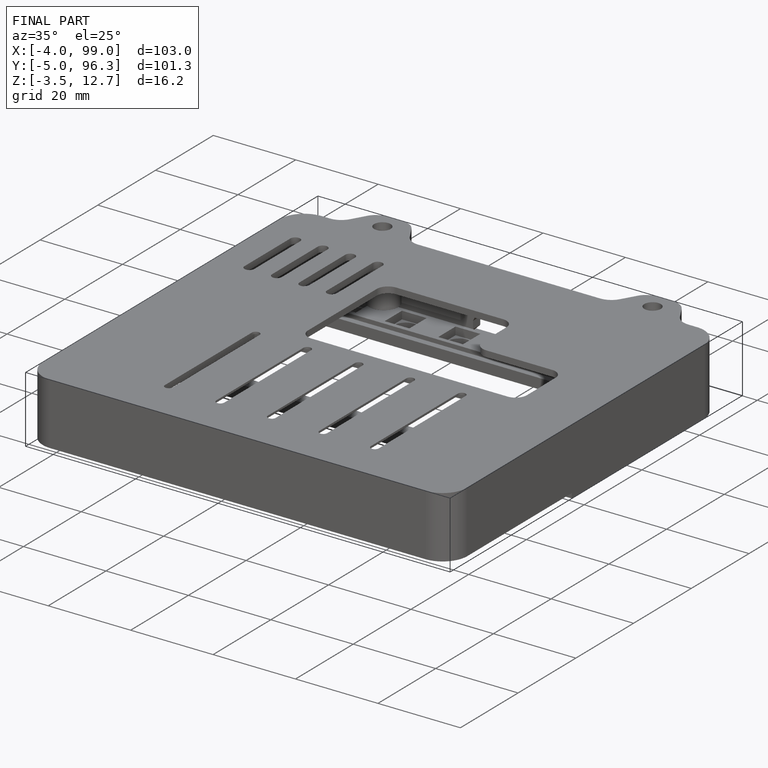
[diagram: finished part — iso view with bounding-box wireframe]
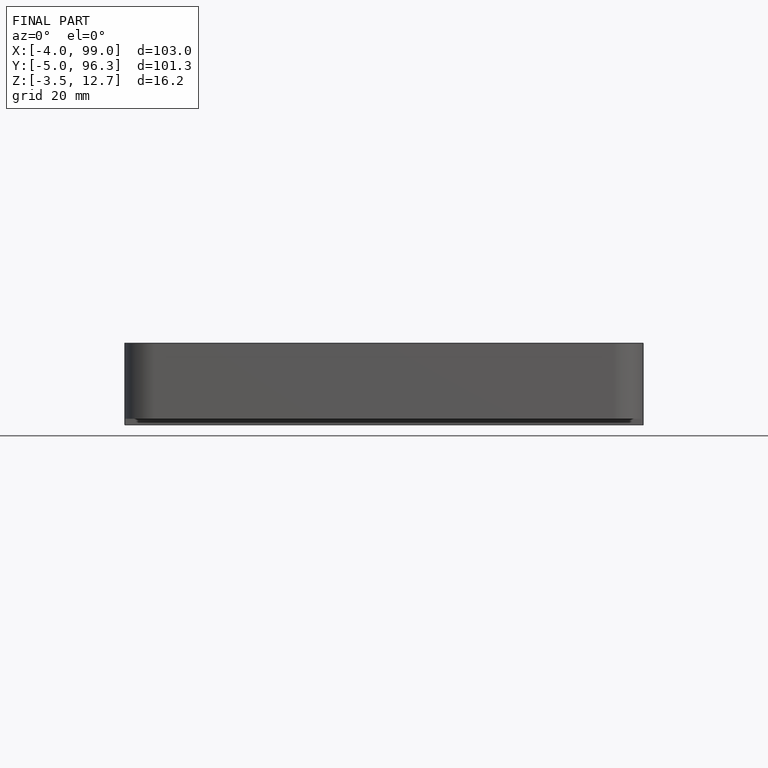
[diagram: finished part — front view with bounding-box wireframe]
